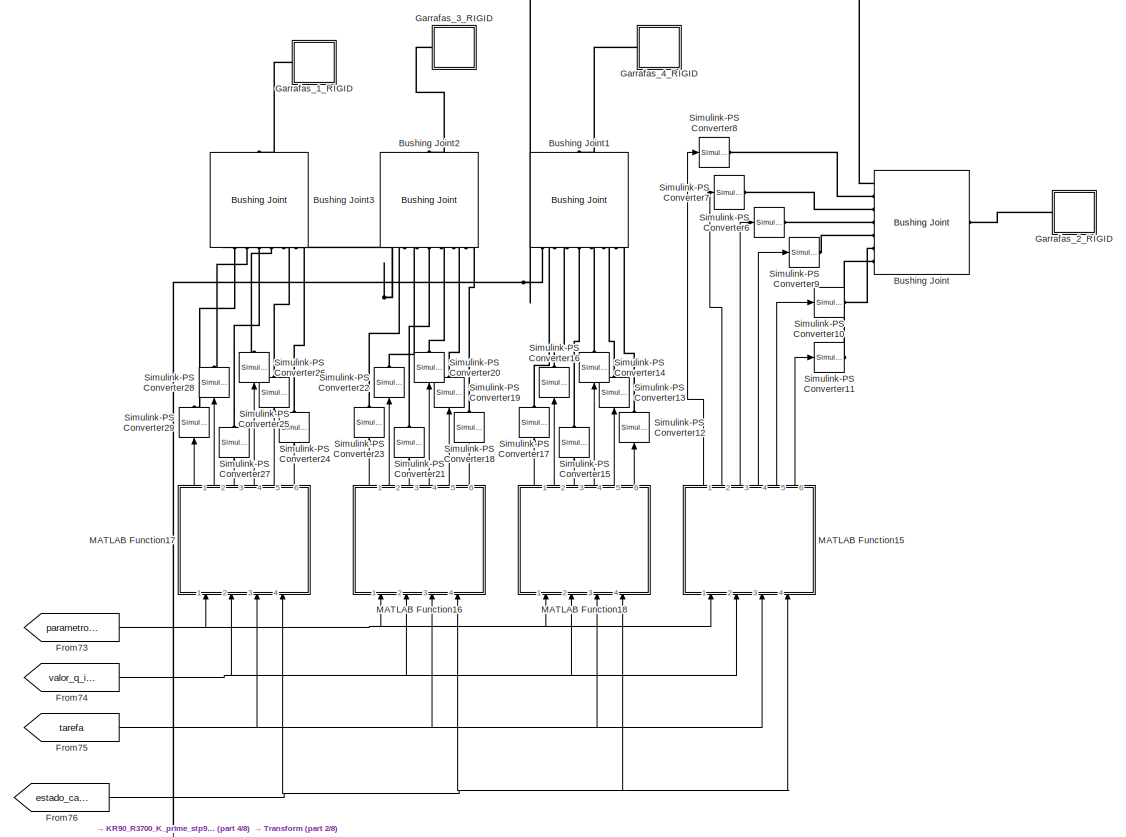
[diagram: root canvas - part 1/8, top center region]
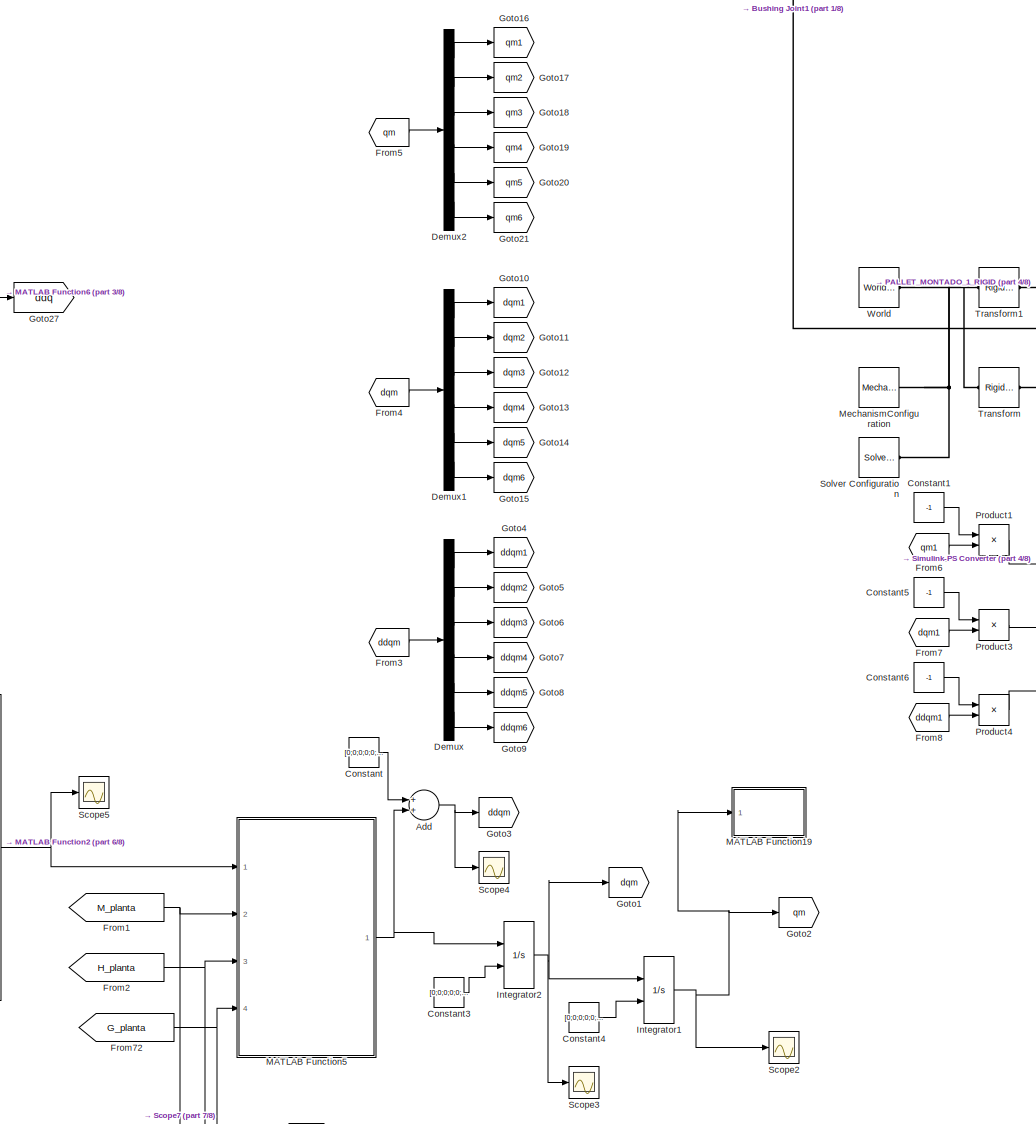
[diagram: root canvas - part 2/8, central region]
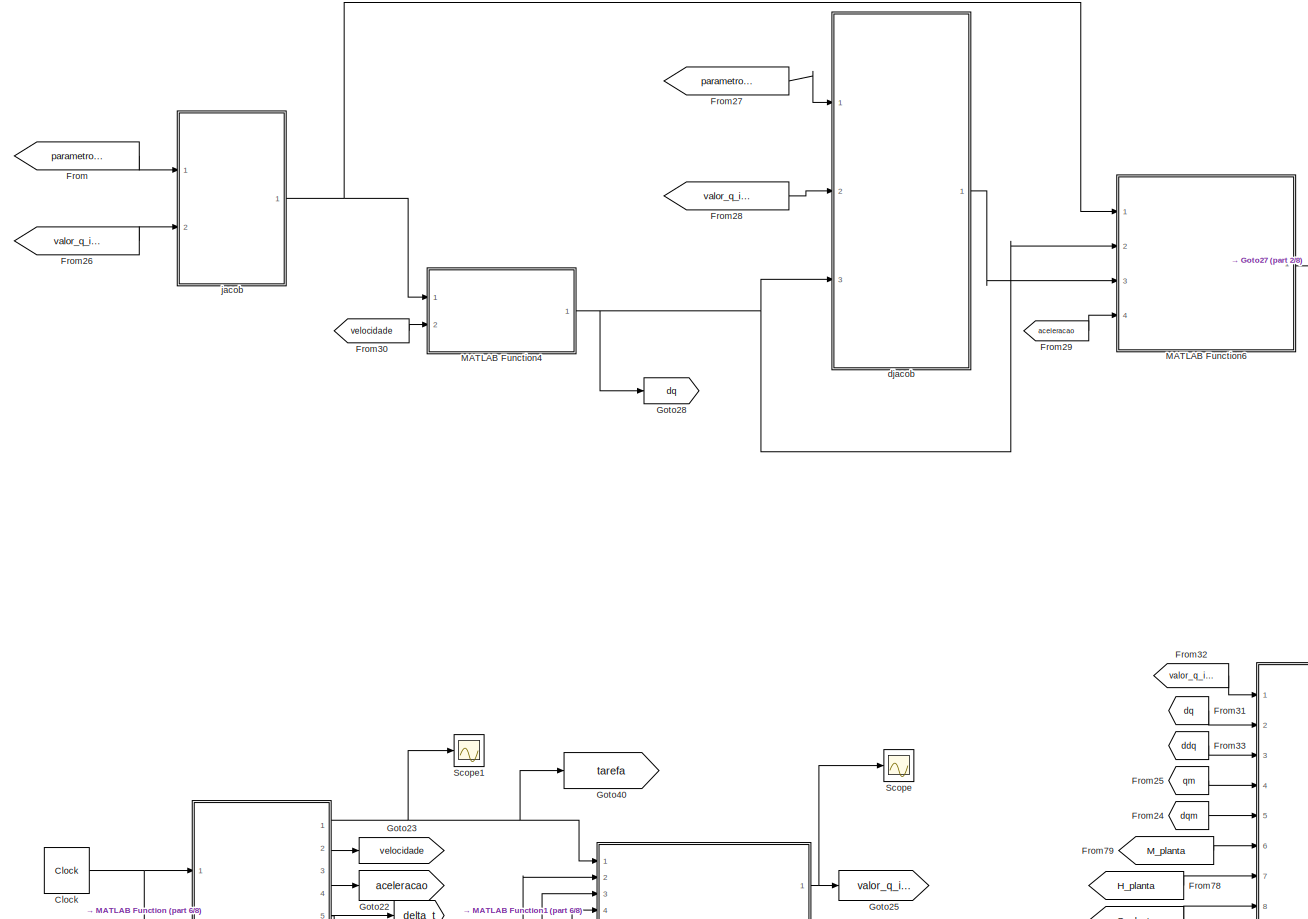
[diagram: root canvas - part 3/8, middle left region]
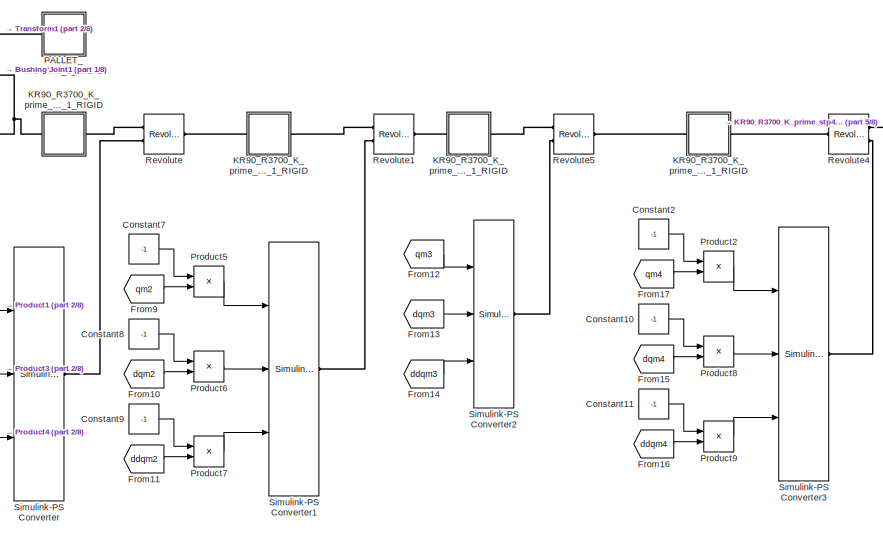
[diagram: root canvas - part 4/8, middle right region]
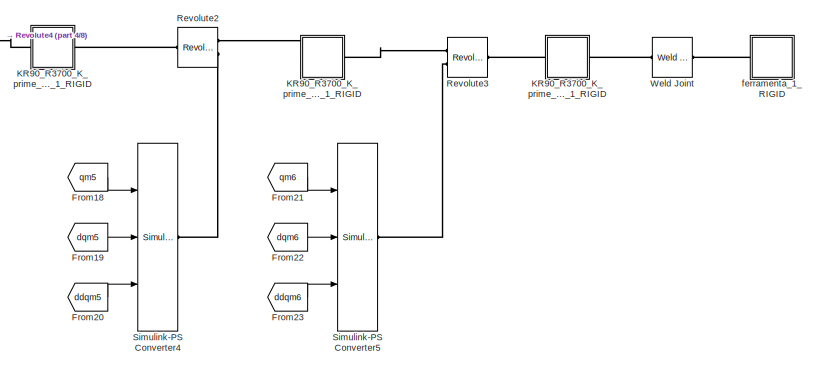
[diagram: root canvas - part 5/8, middle right region]
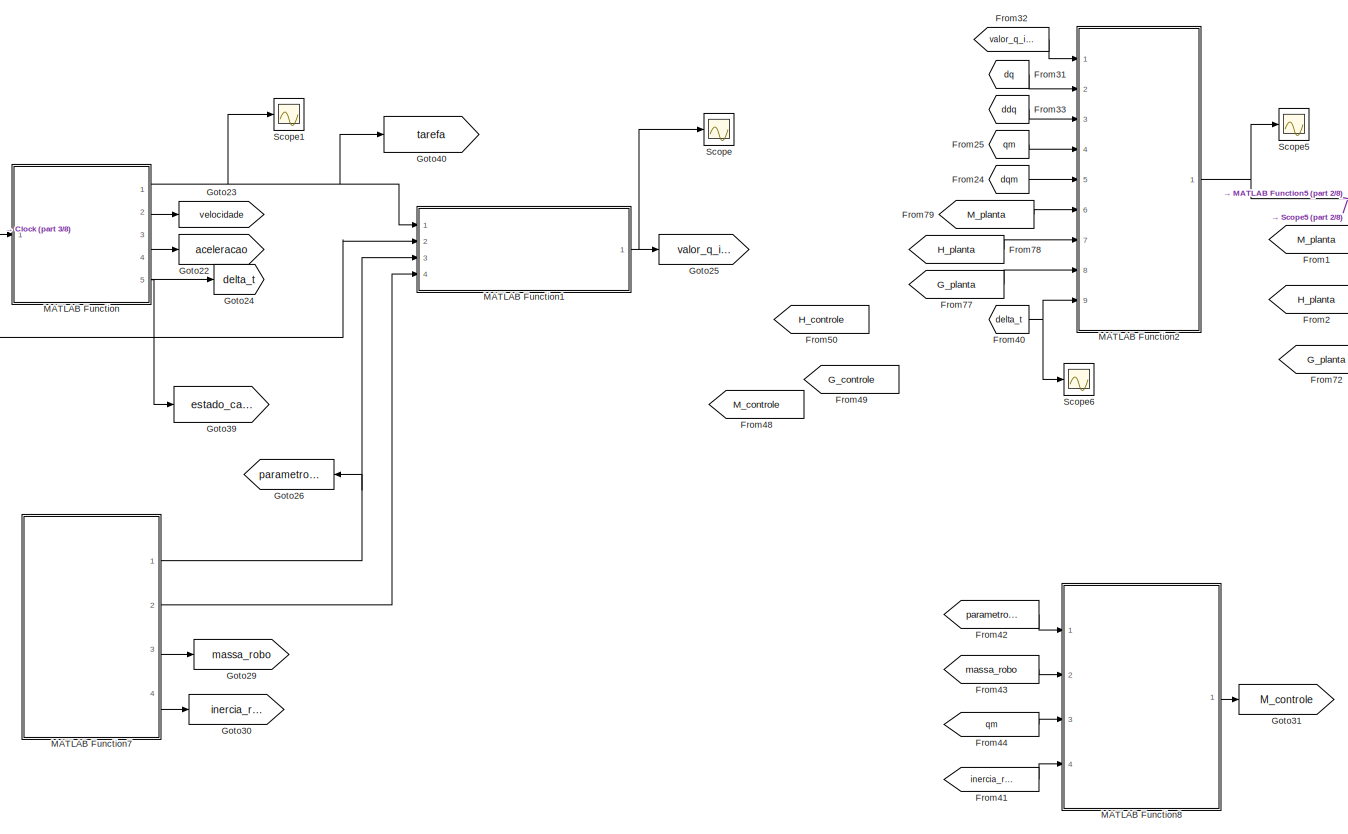
[diagram: root canvas - part 6/8, middle left region]
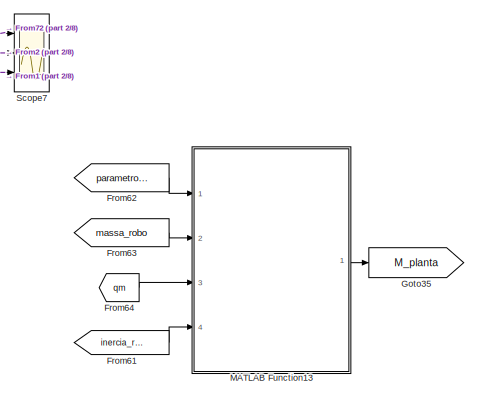
[diagram: root canvas - part 7/8, bottom center region]
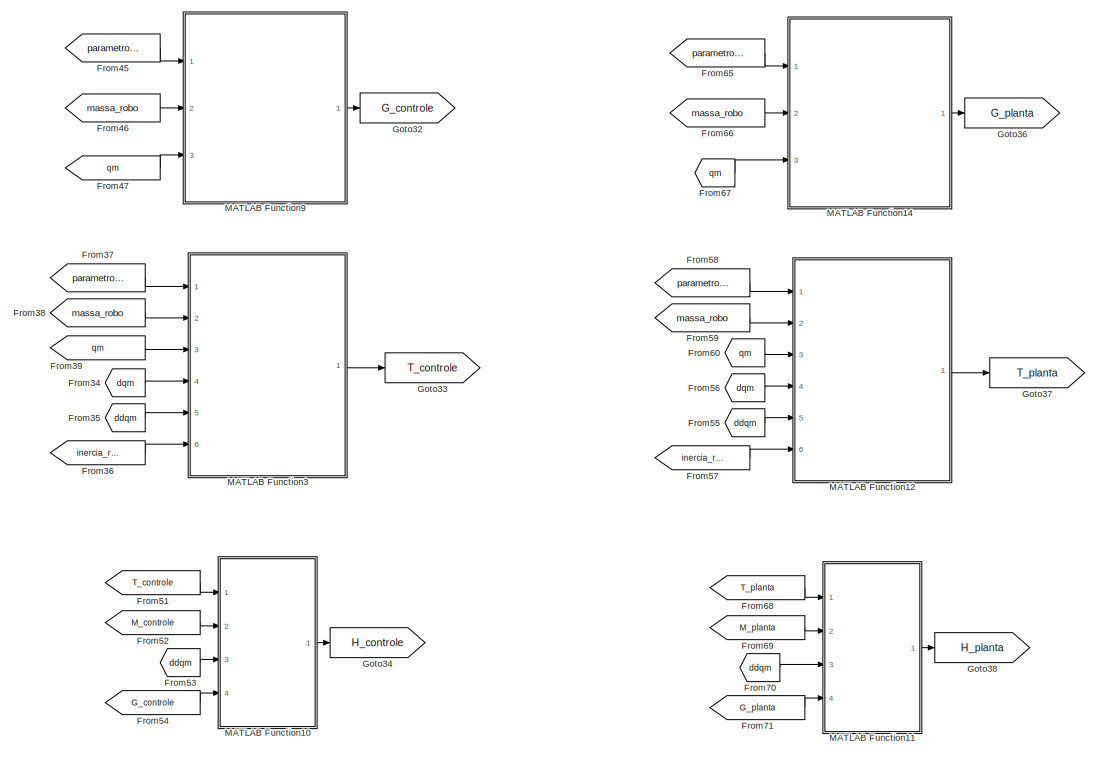
[diagram: root canvas - part 8/8, bottom center region]
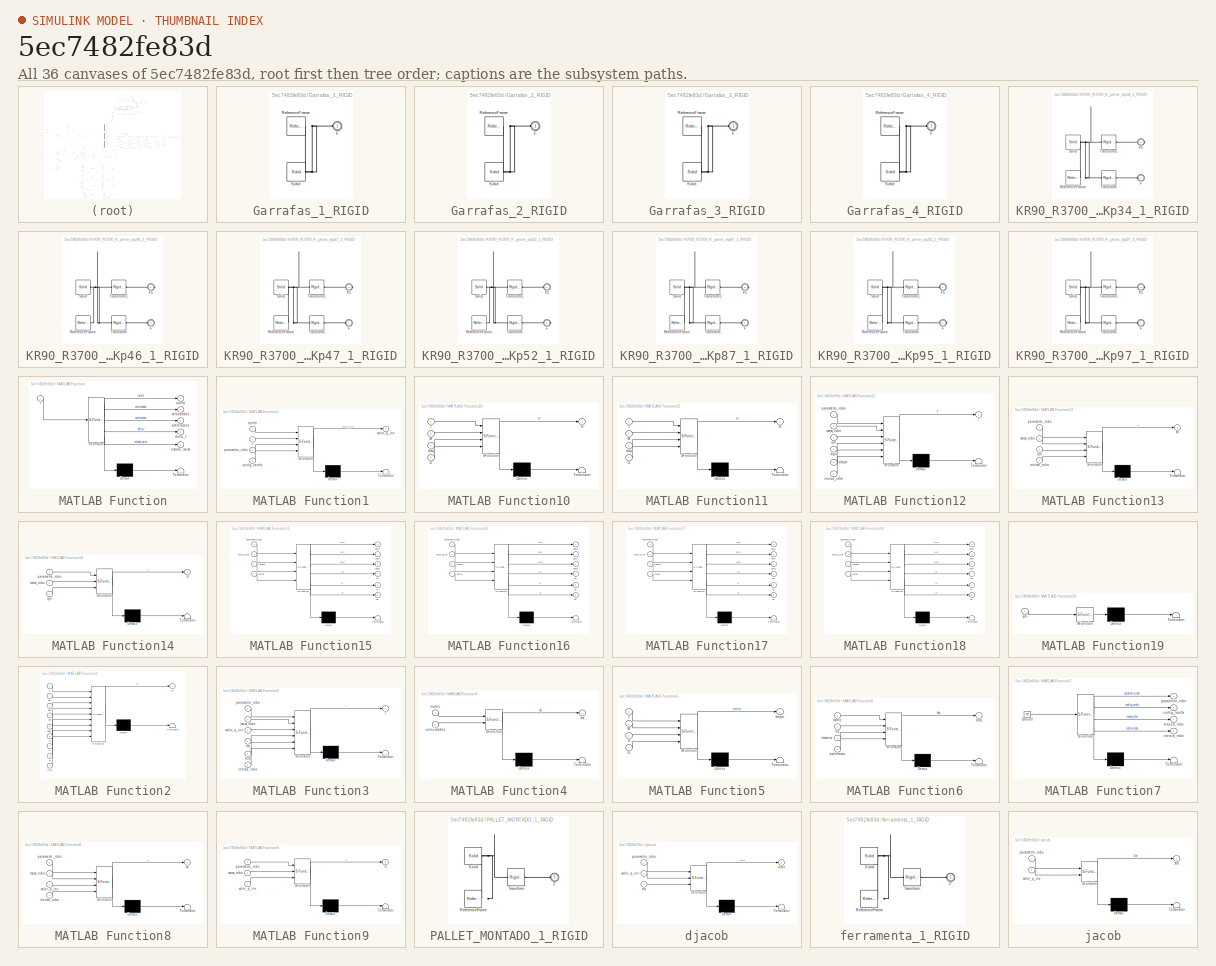
[diagram: thumbnail index - all 36 canvases of the model, root first then tree order]
MODEL slx_5ec7482fe83d
KIND model
CONFIG AbsTol = auto
CONFIG EnableMultiTasking = off
CONFIG FixedStep = 0.4
CONFIG MaxStep = 0.4
CONFIG MinStep = auto
CONFIG RelTol = 1e-3
CONFIG SampleTimeConstraint = Unconstrained
CONFIG Solver = VariableStepAuto
CONFIG SolverName = VariableStepAuto
CONFIG StartTime = 0.0
CONFIG StopTime = 59
WORKSPACE source: external: MATLAB File  (data not in archive)
BLOCK [Sum] Add
  InputSameDT = off
  OutDataTypeStr = Inherit: Inherit via internal rule
  Ports = [2, 1]
  SaturateOnIntegerOverflow = off
BLOCK [Reference] Bushing Joint  REF=sm_lib/Joints/Bushing Joint
  Commented = on
  Ports = [0, 0, 0, 0, 0, 7, 1]
  SourceBlock = sm_lib/Joints/Bushing Joint
  SourceProductBaseCode = MS
  SourceProductName = Simscape Multibody
  SourceType = Bushing Joint
BLOCK [Reference] Bushing Joint1  REF=sm_lib/Joints/Bushing Joint
  Commented = on
  Ports = [0, 0, 0, 0, 0, 7, 1]
  SourceBlock = sm_lib/Joints/Bushing Joint
  SourceProductBaseCode = MS
  SourceProductName = Simscape Multibody
  SourceType = Bushing Joint
BLOCK [Reference] Bushing Joint2  REF=sm_lib/Joints/Bushing Joint
  Commented = on
  Ports = [0, 0, 0, 0, 0, 7, 1]
  SourceBlock = sm_lib/Joints/Bushing Joint
  SourceProductBaseCode = MS
  SourceProductName = Simscape Multibody
  SourceType = Bushing Joint
BLOCK [Reference] Bushing Joint3  REF=sm_lib/Joints/Bushing Joint
  Commented = on
  Ports = [0, 0, 0, 0, 0, 7, 1]
  SourceBlock = sm_lib/Joints/Bushing Joint
  SourceProductBaseCode = MS
  SourceProductName = Simscape Multibody
  SourceType = Bushing Joint
BLOCK [Clock] Clock
BLOCK [Constant] Constant
  Value = [0;0;0;0;0;0]
BLOCK [Constant] Constant1
  Value = -1
BLOCK [Constant] Constant10
  Value = -1
BLOCK [Constant] Constant11
  Value = -1
BLOCK [Constant] Constant2
  Value = -1
BLOCK [Constant] Constant3
  Value = [0;0;0;0;0;0]
BLOCK [Constant] Constant4
  Value = [0;0;0;0;0;0]
BLOCK [Constant] Constant5
  Value = -1
BLOCK [Constant] Constant6
  Value = -1
BLOCK [Constant] Constant7
  Value = -1
BLOCK [Constant] Constant8
  Value = -1
BLOCK [Constant] Constant9
  Value = -1
BLOCK [Demux] Demux
  DisplayOption = bar
  Outputs = 6
  Ports = [1, 6]
BLOCK [Demux] Demux1
  DisplayOption = bar
  Outputs = 6
  Ports = [1, 6]
BLOCK [Demux] Demux2
  DisplayOption = bar
  Outputs = 6
  Ports = [1, 6]
BLOCK [From] From
  GotoTag = parametro_robo
BLOCK [From] From1
  GotoTag = M_planta
BLOCK [From] From10
  GotoTag = dqm2
BLOCK [From] From11
  GotoTag = ddqm2
BLOCK [From] From12
  GotoTag = qm3
BLOCK [From] From13
  GotoTag = dqm3
BLOCK [From] From14
  GotoTag = ddqm3
BLOCK [From] From15
  GotoTag = dqm4
BLOCK [From] From16
  GotoTag = ddqm4
BLOCK [From] From17
  GotoTag = qm4
BLOCK [From] From18
  GotoTag = qm5
BLOCK [From] From19
  GotoTag = dqm5
BLOCK [From] From2
  GotoTag = H_planta
BLOCK [From] From20
  GotoTag = ddqm5
BLOCK [From] From21
  GotoTag = qm6
BLOCK [From] From22
  GotoTag = dqm6
BLOCK [From] From23
  GotoTag = ddqm6
BLOCK [From] From24
  GotoTag = dqm
BLOCK [From] From25
  GotoTag = qm
BLOCK [From] From26
  GotoTag = valor_q_inv
BLOCK [From] From27
  GotoTag = parametro_robo
BLOCK [From] From28
  GotoTag = valor_q_inv
BLOCK [From] From29
  GotoTag = aceleracao
BLOCK [From] From3
  GotoTag = ddqm
BLOCK [From] From30
  GotoTag = velocidade
BLOCK [From] From31
  GotoTag = dq
BLOCK [From] From32
  GotoTag = valor_q_inv
BLOCK [From] From33
  GotoTag = ddq
BLOCK [From] From34
  Commented = on
  GotoTag = dqm
BLOCK [From] From35
  Commented = on
  GotoTag = ddqm
BLOCK [From] From36
  Commented = on
  GotoTag = inercia_robo
BLOCK [From] From37
  Commented = on
  GotoTag = parametro_robo
BLOCK [From] From38
  Commented = on
  GotoTag = massa_robo
BLOCK [From] From39
  Commented = on
  GotoTag = qm
BLOCK [From] From4
  GotoTag = dqm
BLOCK [From] From40
  GotoTag = delta_t
BLOCK [From] From41
  Commented = on
  GotoTag = inercia_robo
BLOCK [From] From42
  Commented = on
  GotoTag = parametro_robo
BLOCK [From] From43
  Commented = on
  GotoTag = massa_robo
BLOCK [From] From44
  Commented = on
  GotoTag = qm
BLOCK [From] From45
  Commented = on
  GotoTag = parametro_robo
BLOCK [From] From46
  Commented = on
  GotoTag = massa_robo
BLOCK [From] From47
  Commented = on
  GotoTag = qm
BLOCK [From] From48
  Commented = on
  GotoTag = M_controle
BLOCK [From] From49
  Commented = on
  GotoTag = G_controle
BLOCK [From] From5
  GotoTag = qm
BLOCK [From] From50
  Commented = on
  GotoTag = H_controle
BLOCK [From] From51
  Commented = on
  GotoTag = T_controle
BLOCK [From] From52
  Commented = on
  GotoTag = M_controle
BLOCK [From] From53
  Commented = on
  GotoTag = ddqm
BLOCK [From] From54
  Commented = on
  GotoTag = G_controle
BLOCK [From] From55
  GotoTag = ddqm
BLOCK [From] From56
  GotoTag = dqm
BLOCK [From] From57
  GotoTag = inercia_robo
BLOCK [From] From58
  GotoTag = parametro_robo
BLOCK [From] From59
  GotoTag = massa_robo
BLOCK [From] From6
  GotoTag = qm1
BLOCK [From] From60
  GotoTag = qm
BLOCK [From] From61
  GotoTag = inercia_robo
BLOCK [From] From62
  GotoTag = parametro_robo
BLOCK [From] From63
  GotoTag = massa_robo
BLOCK [From] From64
  GotoTag = qm
BLOCK [From] From65
  GotoTag = parametro_robo
BLOCK [From] From66
  GotoTag = massa_robo
BLOCK [From] From67
  GotoTag = qm
BLOCK [From] From68
  GotoTag = T_planta
BLOCK [From] From69
  GotoTag = M_planta
BLOCK [From] From7
  GotoTag = dqm1
BLOCK [From] From70
  GotoTag = ddqm
BLOCK [From] From71
  GotoTag = G_planta
BLOCK [From] From72
  GotoTag = G_planta
BLOCK [From] From73
  Commented = on
  GotoTag = parametro_robo
BLOCK [From] From74
  Commented = on
  GotoTag = valor_q_inv
BLOCK [From] From75
  Commented = on
  GotoTag = tarefa
BLOCK [From] From76
  Commented = on
  GotoTag = estado_caixa
BLOCK [From] From77
  GotoTag = G_planta
BLOCK [From] From78
  GotoTag = H_planta
BLOCK [From] From79
  GotoTag = M_planta
BLOCK [From] From8
  GotoTag = ddqm1
BLOCK [From] From9
  GotoTag = qm2
BLOCK [SubSystem] Garrafas_1_RIGID
  Commented = on
  Ports = [0, 0, 0, 0, 0, 1]
  RequestExecContextInheritance = off
BLOCK [PMIOPort] Garrafas_1_RIGID/F
  Side = Left
BLOCK [Reference] Garrafas_1_RIGID/ReferenceFrame  REF=sm_lib/Frames and
Transforms/Reference
Frame
  Ports = [0, 0, 0, 0, 0, 0, 1]
  SourceBlock = sm_lib/Frames and\nTransforms/Reference\nFrame
  SourceProductBaseCode = MS
  SourceProductName = Simscape Multibody
  SourceType = Reference\nFrame
BLOCK [Reference] Garrafas_1_RIGID/Solid  REF=sm_lib/Body Elements/Solid
  Ports = [0, 0, 0, 0, 0, 0, 1]
  SourceBlock = sm_lib/Body Elements/Solid
  SourceProductBaseCode = MS
  SourceProductName = Simscape Multibody
  SourceType = Solid
BLOCK [SubSystem] Garrafas_2_RIGID
  Commented = on
  Ports = [0, 0, 0, 0, 0, 1]
  RequestExecContextInheritance = off
BLOCK [PMIOPort] Garrafas_2_RIGID/F
  Side = Left
BLOCK [Reference] Garrafas_2_RIGID/ReferenceFrame  REF=sm_lib/Frames and
Transforms/Reference
Frame
  Ports = [0, 0, 0, 0, 0, 0, 1]
  SourceBlock = sm_lib/Frames and\nTransforms/Reference\nFrame
  SourceProductBaseCode = MS
  SourceProductName = Simscape Multibody
  SourceType = Reference\nFrame
BLOCK [Reference] Garrafas_2_RIGID/Solid  REF=sm_lib/Body Elements/Solid
  Ports = [0, 0, 0, 0, 0, 0, 1]
  SourceBlock = sm_lib/Body Elements/Solid
  SourceProductBaseCode = MS
  SourceProductName = Simscape Multibody
  SourceType = Solid
BLOCK [SubSystem] Garrafas_3_RIGID
  Commented = on
  Ports = [0, 0, 0, 0, 0, 1]
  RequestExecContextInheritance = off
BLOCK [PMIOPort] Garrafas_3_RIGID/F
  Side = Left
BLOCK [Reference] Garrafas_3_RIGID/ReferenceFrame  REF=sm_lib/Frames and
Transforms/Reference
Frame
  Ports = [0, 0, 0, 0, 0, 0, 1]
  SourceBlock = sm_lib/Frames and\nTransforms/Reference\nFrame
  SourceProductBaseCode = MS
  SourceProductName = Simscape Multibody
  SourceType = Reference\nFrame
BLOCK [Reference] Garrafas_3_RIGID/Solid  REF=sm_lib/Body Elements/Solid
  Ports = [0, 0, 0, 0, 0, 0, 1]
  SourceBlock = sm_lib/Body Elements/Solid
  SourceProductBaseCode = MS
  SourceProductName = Simscape Multibody
  SourceType = Solid
BLOCK [SubSystem] Garrafas_4_RIGID
  Commented = on
  Ports = [0, 0, 0, 0, 0, 1]
  RequestExecContextInheritance = off
BLOCK [PMIOPort] Garrafas_4_RIGID/F
  Side = Left
BLOCK [Reference] Garrafas_4_RIGID/ReferenceFrame  REF=sm_lib/Frames and
Transforms/Reference
Frame
  Ports = [0, 0, 0, 0, 0, 0, 1]
  SourceBlock = sm_lib/Frames and\nTransforms/Reference\nFrame
  SourceProductBaseCode = MS
  SourceProductName = Simscape Multibody
  SourceType = Reference\nFrame
BLOCK [Reference] Garrafas_4_RIGID/Solid  REF=sm_lib/Body Elements/Solid
  Ports = [0, 0, 0, 0, 0, 0, 1]
  SourceBlock = sm_lib/Body Elements/Solid
  SourceProductBaseCode = MS
  SourceProductName = Simscape Multibody
  SourceType = Solid
BLOCK [Goto] Goto1
  GotoTag = dqm
BLOCK [Goto] Goto10
  GotoTag = dqm1
BLOCK [Goto] Goto11
  GotoTag = dqm2
BLOCK [Goto] Goto12
  GotoTag = dqm3
BLOCK [Goto] Goto13
  GotoTag = dqm4
BLOCK [Goto] Goto14
  GotoTag = dqm5
BLOCK [Goto] Goto15
  GotoTag = dqm6
BLOCK [Goto] Goto16
  GotoTag = qm1
BLOCK [Goto] Goto17
  GotoTag = qm2
BLOCK [Goto] Goto18
  GotoTag = qm3
BLOCK [Goto] Goto19
  GotoTag = qm4
BLOCK [Goto] Goto2
  GotoTag = qm
BLOCK [Goto] Goto20
  GotoTag = qm5
BLOCK [Goto] Goto21
  GotoTag = qm6
BLOCK [Goto] Goto22
  GotoTag = aceleracao
BLOCK [Goto] Goto23
  GotoTag = velocidade
BLOCK [Goto] Goto24
  GotoTag = delta_t
BLOCK [Goto] Goto25
  GotoTag = valor_q_inv
BLOCK [Goto] Goto26
  GotoTag = parametro_robo
BLOCK [Goto] Goto27
  GotoTag = ddq
BLOCK [Goto] Goto28
  GotoTag = dq
BLOCK [Goto] Goto29
  GotoTag = massa_robo
BLOCK [Goto] Goto3
  GotoTag = ddqm
BLOCK [Goto] Goto30
  GotoTag = inercia_robo
BLOCK [Goto] Goto31
  Commented = on
  GotoTag = M_controle
BLOCK [Goto] Goto32
  Commented = on
  GotoTag = G_controle
BLOCK [Goto] Goto33
  Commented = on
  GotoTag = T_controle
BLOCK [Goto] Goto34
  Commented = on
  GotoTag = H_controle
BLOCK [Goto] Goto35
  GotoTag = M_planta
BLOCK [Goto] Goto36
  GotoTag = G_planta
BLOCK [Goto] Goto37
  GotoTag = T_planta
BLOCK [Goto] Goto38
  GotoTag = H_planta
BLOCK [Goto] Goto39
  Commented = on
  GotoTag = estado_caixa
BLOCK [Goto] Goto4
  GotoTag = ddqm1
BLOCK [Goto] Goto40
  Commented = on
  GotoTag = tarefa
BLOCK [Goto] Goto5
  GotoTag = ddqm2
BLOCK [Goto] Goto6
  GotoTag = ddqm3
BLOCK [Goto] Goto7
  GotoTag = ddqm4
BLOCK [Goto] Goto8
  GotoTag = ddqm5
BLOCK [Goto] Goto9
  GotoTag = ddqm6
BLOCK [Integrator] Integrator1
  InitialConditionSource = external
  Ports = [2, 1]
BLOCK [Integrator] Integrator2
  InitialConditionSource = external
  Ports = [2, 1]
BLOCK [SubSystem] KR90_R3700_K_prime_stp34_1_RIGID
  Ports = [0, 0, 0, 0, 0, 1, 1]
  RequestExecContextInheritance = off
BLOCK [PMIOPort] KR90_R3700_K_prime_stp34_1_RIGID/F
  Side = Left
BLOCK [PMIOPort] KR90_R3700_K_prime_stp34_1_RIGID/F1
  Port = 2
  Side = Right
BLOCK [Reference] KR90_R3700_K_prime_stp34_1_RIGID/ReferenceFrame  REF=sm_lib/Frames and
Transforms/Reference
Frame
  Ports = [0, 0, 0, 0, 0, 0, 1]
  SourceBlock = sm_lib/Frames and\nTransforms/Reference\nFrame
  SourceProductBaseCode = MS
  SourceProductName = Simscape Multibody
  SourceType = Reference\nFrame
BLOCK [Reference] KR90_R3700_K_prime_stp34_1_RIGID/Solid  REF=sm_lib/Body Elements/Solid
  Ports = [0, 0, 0, 0, 0, 0, 1]
  SourceBlock = sm_lib/Body Elements/Solid
  SourceProductBaseCode = MS
  SourceProductName = Simscape Multibody
  SourceType = Solid
BLOCK [Reference] KR90_R3700_K_prime_stp34_1_RIGID/Transform  REF=sm_lib/Frames and
Transforms/Rigid
Transform
  Ports = [0, 0, 0, 0, 0, 1, 1]
  SourceBlock = sm_lib/Frames and\nTransforms/Rigid\nTransform
  SourceProductBaseCode = MS
  SourceProductName = Simscape Multibody
  SourceType = Rigid\nTransform
BLOCK [Reference] KR90_R3700_K_prime_stp34_1_RIGID/Transform1  REF=sm_lib/Frames and
Transforms/Rigid
Transform
  Ports = [0, 0, 0, 0, 0, 1, 1]
  SourceBlock = sm_lib/Frames and\nTransforms/Rigid\nTransform
  SourceProductBaseCode = MS
  SourceProductName = Simscape Multibody
  SourceType = Rigid\nTransform
BLOCK [SubSystem] KR90_R3700_K_prime_stp46_1_RIGID
  Ports = [0, 0, 0, 0, 0, 1, 1]
  RequestExecContextInheritance = off
BLOCK [PMIOPort] KR90_R3700_K_prime_stp46_1_RIGID/F
  Port = 2
  Side = Left
BLOCK [PMIOPort] KR90_R3700_K_prime_stp46_1_RIGID/F1
  Side = Right
BLOCK [Reference] KR90_R3700_K_prime_stp46_1_RIGID/ReferenceFrame  REF=sm_lib/Frames and
Transforms/Reference
Frame
  Ports = [0, 0, 0, 0, 0, 0, 1]
  SourceBlock = sm_lib/Frames and\nTransforms/Reference\nFrame
  SourceProductBaseCode = MS
  SourceProductName = Simscape Multibody
  SourceType = Reference\nFrame
BLOCK [Reference] KR90_R3700_K_prime_stp46_1_RIGID/Solid  REF=sm_lib/Body Elements/Solid
  Ports = [0, 0, 0, 0, 0, 0, 1]
  SourceBlock = sm_lib/Body Elements/Solid
  SourceProductBaseCode = MS
  SourceProductName = Simscape Multibody
  SourceType = Solid
BLOCK [Reference] KR90_R3700_K_prime_stp46_1_RIGID/Transform  REF=sm_lib/Frames and
Transforms/Rigid
Transform
  Ports = [0, 0, 0, 0, 0, 1, 1]
  SourceBlock = sm_lib/Frames and\nTransforms/Rigid\nTransform
  SourceProductBaseCode = MS
  SourceProductName = Simscape Multibody
  SourceType = Rigid\nTransform
BLOCK [Reference] KR90_R3700_K_prime_stp46_1_RIGID/Transform1  REF=sm_lib/Frames and
Transforms/Rigid
Transform
  Ports = [0, 0, 0, 0, 0, 1, 1]
  SourceBlock = sm_lib/Frames and\nTransforms/Rigid\nTransform
  SourceProductBaseCode = MS
  SourceProductName = Simscape Multibody
  SourceType = Rigid\nTransform
BLOCK [SubSystem] KR90_R3700_K_prime_stp47_1_RIGID
  Ports = [0, 0, 0, 0, 0, 1, 1]
  RequestExecContextInheritance = off
BLOCK [PMIOPort] KR90_R3700_K_prime_stp47_1_RIGID/F
  Side = Left
BLOCK [PMIOPort] KR90_R3700_K_prime_stp47_1_RIGID/F1
  Port = 2
  Side = Right
BLOCK [Reference] KR90_R3700_K_prime_stp47_1_RIGID/ReferenceFrame  REF=sm_lib/Frames and
Transforms/Reference
Frame
  Ports = [0, 0, 0, 0, 0, 0, 1]
  SourceBlock = sm_lib/Frames and\nTransforms/Reference\nFrame
  SourceProductBaseCode = MS
  SourceProductName = Simscape Multibody
  SourceType = Reference\nFrame
BLOCK [Reference] KR90_R3700_K_prime_stp47_1_RIGID/Solid  REF=sm_lib/Body Elements/Solid
  Ports = [0, 0, 0, 0, 0, 0, 1]
  SourceBlock = sm_lib/Body Elements/Solid
  SourceProductBaseCode = MS
  SourceProductName = Simscape Multibody
  SourceType = Solid
BLOCK [Reference] KR90_R3700_K_prime_stp47_1_RIGID/Transform  REF=sm_lib/Frames and
Transforms/Rigid
Transform
  Ports = [0, 0, 0, 0, 0, 1, 1]
  SourceBlock = sm_lib/Frames and\nTransforms/Rigid\nTransform
  SourceProductBaseCode = MS
  SourceProductName = Simscape Multibody
  SourceType = Rigid\nTransform
BLOCK [Reference] KR90_R3700_K_prime_stp47_1_RIGID/Transform1  REF=sm_lib/Frames and
Transforms/Rigid
Transform
  Ports = [0, 0, 0, 0, 0, 1, 1]
  SourceBlock = sm_lib/Frames and\nTransforms/Rigid\nTransform
  SourceProductBaseCode = MS
  SourceProductName = Simscape Multibody
  SourceType = Rigid\nTransform
BLOCK [SubSystem] KR90_R3700_K_prime_stp52_1_RIGID
  Ports = [0, 0, 0, 0, 0, 1, 1]
  RequestExecContextInheritance = off
BLOCK [PMIOPort] KR90_R3700_K_prime_stp52_1_RIGID/F
  Port = 2
  Side = Right
BLOCK [PMIOPort] KR90_R3700_K_prime_stp52_1_RIGID/F1
  Side = Left
BLOCK [Reference] KR90_R3700_K_prime_stp52_1_RIGID/ReferenceFrame  REF=sm_lib/Frames and
Transforms/Reference
Frame
  Ports = [0, 0, 0, 0, 0, 0, 1]
  SourceBlock = sm_lib/Frames and\nTransforms/Reference\nFrame
  SourceProductBaseCode = MS
  SourceProductName = Simscape Multibody
  SourceType = Reference\nFrame
BLOCK [Reference] KR90_R3700_K_prime_stp52_1_RIGID/Solid  REF=sm_lib/Body Elements/Solid
  Ports = [0, 0, 0, 0, 0, 0, 1]
  SourceBlock = sm_lib/Body Elements/Solid
  SourceProductBaseCode = MS
  SourceProductName = Simscape Multibody
  SourceType = Solid
BLOCK [Reference] KR90_R3700_K_prime_stp52_1_RIGID/Transform  REF=sm_lib/Frames and
Transforms/Rigid
Transform
  Ports = [0, 0, 0, 0, 0, 1, 1]
  SourceBlock = sm_lib/Frames and\nTransforms/Rigid\nTransform
  SourceProductBaseCode = MS
  SourceProductName = Simscape Multibody
  SourceType = Rigid\nTransform
BLOCK [Reference] KR90_R3700_K_prime_stp52_1_RIGID/Transform1  REF=sm_lib/Frames and
Transforms/Rigid
Transform
  Ports = [0, 0, 0, 0, 0, 1, 1]
  SourceBlock = sm_lib/Frames and\nTransforms/Rigid\nTransform
  SourceProductBaseCode = MS
  SourceProductName = Simscape Multibody
  SourceType = Rigid\nTransform
BLOCK [SubSystem] KR90_R3700_K_prime_stp87_1_RIGID
  Ports = [0, 0, 0, 0, 0, 1, 1]
  RequestExecContextInheritance = off
BLOCK [PMIOPort] KR90_R3700_K_prime_stp87_1_RIGID/F
  Side = Left
BLOCK [PMIOPort] KR90_R3700_K_prime_stp87_1_RIGID/F1
  Port = 2
  Side = Right
BLOCK [Reference] KR90_R3700_K_prime_stp87_1_RIGID/ReferenceFrame  REF=sm_lib/Frames and
Transforms/Reference
Frame
  Ports = [0, 0, 0, 0, 0, 0, 1]
  SourceBlock = sm_lib/Frames and\nTransforms/Reference\nFrame
  SourceProductBaseCode = MS
  SourceProductName = Simscape Multibody
  SourceType = Reference\nFrame
BLOCK [Reference] KR90_R3700_K_prime_stp87_1_RIGID/Solid  REF=sm_lib/Body Elements/Solid
  Ports = [0, 0, 0, 0, 0, 0, 1]
  SourceBlock = sm_lib/Body Elements/Solid
  SourceProductBaseCode = MS
  SourceProductName = Simscape Multibody
  SourceType = Solid
BLOCK [Reference] KR90_R3700_K_prime_stp87_1_RIGID/Transform  REF=sm_lib/Frames and
Transforms/Rigid
Transform
  Ports = [0, 0, 0, 0, 0, 1, 1]
  SourceBlock = sm_lib/Frames and\nTransforms/Rigid\nTransform
  SourceProductBaseCode = MS
  SourceProductName = Simscape Multibody
  SourceType = Rigid\nTransform
BLOCK [Reference] KR90_R3700_K_prime_stp87_1_RIGID/Transform1  REF=sm_lib/Frames and
Transforms/Rigid
Transform
  Ports = [0, 0, 0, 0, 0, 1, 1]
  SourceBlock = sm_lib/Frames and\nTransforms/Rigid\nTransform
  SourceProductBaseCode = MS
  SourceProductName = Simscape Multibody
  SourceType = Rigid\nTransform
BLOCK [SubSystem] KR90_R3700_K_prime_stp95_1_RIGID
  Ports = [0, 0, 0, 0, 0, 1, 1]
  RequestExecContextInheritance = off
BLOCK [PMIOPort] KR90_R3700_K_prime_stp95_1_RIGID/F
  Port = 2
  Side = Right
BLOCK [PMIOPort] KR90_R3700_K_prime_stp95_1_RIGID/F1
  Side = Left
BLOCK [Reference] KR90_R3700_K_prime_stp95_1_RIGID/ReferenceFrame  REF=sm_lib/Frames and
Transforms/Reference
Frame
  Ports = [0, 0, 0, 0, 0, 0, 1]
  SourceBlock = sm_lib/Frames and\nTransforms/Reference\nFrame
  SourceProductBaseCode = MS
  SourceProductName = Simscape Multibody
  SourceType = Reference\nFrame
BLOCK [Reference] KR90_R3700_K_prime_stp95_1_RIGID/Solid  REF=sm_lib/Body Elements/Solid
  Ports = [0, 0, 0, 0, 0, 0, 1]
  SourceBlock = sm_lib/Body Elements/Solid
  SourceProductBaseCode = MS
  SourceProductName = Simscape Multibody
  SourceType = Solid
BLOCK [Reference] KR90_R3700_K_prime_stp95_1_RIGID/Transform  REF=sm_lib/Frames and
Transforms/Rigid
Transform
  Ports = [0, 0, 0, 0, 0, 1, 1]
  SourceBlock = sm_lib/Frames and\nTransforms/Rigid\nTransform
  SourceProductBaseCode = MS
  SourceProductName = Simscape Multibody
  SourceType = Rigid\nTransform
BLOCK [Reference] KR90_R3700_K_prime_stp95_1_RIGID/Transform1  REF=sm_lib/Frames and
Transforms/Rigid
Transform
  Ports = [0, 0, 0, 0, 0, 1, 1]
  SourceBlock = sm_lib/Frames and\nTransforms/Rigid\nTransform
  SourceProductBaseCode = MS
  SourceProductName = Simscape Multibody
  SourceType = Rigid\nTransform
BLOCK [SubSystem] KR90_R3700_K_prime_stp97_1_RIGID
  Ports = [0, 0, 0, 0, 0, 1, 1]
  RequestExecContextInheritance = off
BLOCK [PMIOPort] KR90_R3700_K_prime_stp97_1_RIGID/F
  Side = Left
BLOCK [PMIOPort] KR90_R3700_K_prime_stp97_1_RIGID/F1
  Port = 2
  Side = Right
BLOCK [Reference] KR90_R3700_K_prime_stp97_1_RIGID/ReferenceFrame  REF=sm_lib/Frames and
Transforms/Reference
Frame
  Ports = [0, 0, 0, 0, 0, 0, 1]
  SourceBlock = sm_lib/Frames and\nTransforms/Reference\nFrame
  SourceProductBaseCode = MS
  SourceProductName = Simscape Multibody
  SourceType = Reference\nFrame
BLOCK [Reference] KR90_R3700_K_prime_stp97_1_RIGID/Solid  REF=sm_lib/Body Elements/Solid
  Ports = [0, 0, 0, 0, 0, 0, 1]
  SourceBlock = sm_lib/Body Elements/Solid
  SourceProductBaseCode = MS
  SourceProductName = Simscape Multibody
  SourceType = Solid
BLOCK [Reference] KR90_R3700_K_prime_stp97_1_RIGID/Transform  REF=sm_lib/Frames and
Transforms/Rigid
Transform
  Ports = [0, 0, 0, 0, 0, 1, 1]
  SourceBlock = sm_lib/Frames and\nTransforms/Rigid\nTransform
  SourceProductBaseCode = MS
  SourceProductName = Simscape Multibody
  SourceType = Rigid\nTransform
BLOCK [Reference] KR90_R3700_K_prime_stp97_1_RIGID/Transform1  REF=sm_lib/Frames and
Transforms/Rigid
Transform
  Ports = [0, 0, 0, 0, 0, 1, 1]
  SourceBlock = sm_lib/Frames and\nTransforms/Rigid\nTransform
  SourceProductBaseCode = MS
  SourceProductName = Simscape Multibody
  SourceType = Rigid\nTransform
BLOCK [SubSystem] MATLAB Function
  ErrorFcn = Stateflow.Translate.translate
  PermitHierarchicalResolution = ExplicitOnly
  Ports = [1, 5]
  RequestExecContextInheritance = off
  SFBlockType = MATLAB Function
  TreatAsAtomicUnit = on
BLOCK [Demux] MATLAB Function/ Demux 
  Outputs = 1
  Ports = [1, 1]
BLOCK [S-Function] MATLAB Function/ SFunction 
  EnableBusSupport = on
  FunctionName = sf_sfun
  PortCounts = [1 6]
  Ports = [1, 6]
  SFcnIsStateOwnerBlock = off
  SFunctionDeploymentMode = off
  Tag = Stateflow S-Function novamontagemrobo 2
BLOCK [Terminator] MATLAB Function/ Terminator 
BLOCK [Outport] MATLAB Function/aceleracoes
  IconDisplay = Port number
  Port = 3
BLOCK [Outport] MATLAB Function/delta_t
  IconDisplay = Port number
  Port = 4
BLOCK [Outport] MATLAB Function/estado_caixa
  IconDisplay = Port number
  Port = 5
BLOCK [Inport] MATLAB Function/t
  IconDisplay = Port number
BLOCK [Outport] MATLAB Function/tarefa
  IconDisplay = Port number
BLOCK [Outport] MATLAB Function/velocidades
  IconDisplay = Port number
  Port = 2
BLOCK [SubSystem] MATLAB Function1
  ErrorFcn = Stateflow.Translate.translate
  PermitHierarchicalResolution = ExplicitOnly
  Ports = [4, 1]
  RequestExecContextInheritance = off
  SFBlockType = MATLAB Function
  TreatAsAtomicUnit = on
BLOCK [Demux] MATLAB Function1/ Demux 
  Outputs = 1
  Ports = [1, 1]
BLOCK [S-Function] MATLAB Function1/ SFunction 
  EnableBusSupport = on
  FunctionName = sf_sfun
  PortCounts = [4 2]
  Ports = [4, 2]
  SFcnIsStateOwnerBlock = off
  SFunctionDeploymentMode = off
  Tag = Stateflow S-Function novamontagemrobo 1
BLOCK [Terminator] MATLAB Function1/ Terminator 
BLOCK [Inport] MATLAB Function1/config_tarefa
  IconDisplay = Port number
  Port = 4
BLOCK [Inport] MATLAB Function1/parametro_robo
  IconDisplay = Port number
  Port = 3
BLOCK [Inport] MATLAB Function1/t
  IconDisplay = Port number
  Port = 2
BLOCK [Inport] MATLAB Function1/tarefa
  IconDisplay = Port number
BLOCK [Outport] MATLAB Function1/valor_q_inv
  IconDisplay = Port number
BLOCK [SubSystem] MATLAB Function10
  Commented = on
  ErrorFcn = Stateflow.Translate.translate
  PermitHierarchicalResolution = ExplicitOnly
  Ports = [4, 1]
  RequestExecContextInheritance = off
  SFBlockType = MATLAB Function
  TreatAsAtomicUnit = on
BLOCK [Demux] MATLAB Function10/ Demux 
  Outputs = 1
  Ports = [1, 1]
BLOCK [S-Function] MATLAB Function10/ SFunction 
  EnableBusSupport = on
  FunctionName = sf_sfun
  PortCounts = [4 2]
  Ports = [4, 2]
  SFcnIsStateOwnerBlock = off
  SFunctionDeploymentMode = off
  Tag = Stateflow S-Function novamontagemrobo 15
BLOCK [Terminator] MATLAB Function10/ Terminator 
BLOCK [Inport] MATLAB Function10/G
  IconDisplay = Port number
  Port = 4
BLOCK [Outport] MATLAB Function10/H
  IconDisplay = Port number
BLOCK [Inport] MATLAB Function10/M
  IconDisplay = Port number
  Port = 2
BLOCK [Inport] MATLAB Function10/T
  IconDisplay = Port number
BLOCK [Inport] MATLAB Function10/ddq
  IconDisplay = Port number
  Port = 3
BLOCK [SubSystem] MATLAB Function11
  ErrorFcn = Stateflow.Translate.translate
  PermitHierarchicalResolution = ExplicitOnly
  Ports = [4, 1]
  RequestExecContextInheritance = off
  SFBlockType = MATLAB Function
  TreatAsAtomicUnit = on
BLOCK [Demux] MATLAB Function11/ Demux 
  Outputs = 1
  Ports = [1, 1]
BLOCK [S-Function] MATLAB Function11/ SFunction 
  EnableBusSupport = on
  FunctionName = sf_sfun
  PortCounts = [4 2]
  Ports = [4, 2]
  SFcnIsStateOwnerBlock = off
  SFunctionDeploymentMode = off
  Tag = Stateflow S-Function novamontagemrobo 16
BLOCK [Terminator] MATLAB Function11/ Terminator 
BLOCK [Inport] MATLAB Function11/G
  IconDisplay = Port number
  Port = 4
BLOCK [Outport] MATLAB Function11/H
  IconDisplay = Port number
BLOCK [Inport] MATLAB Function11/M
  IconDisplay = Port number
  Port = 2
BLOCK [Inport] MATLAB Function11/T
  IconDisplay = Port number
BLOCK [Inport] MATLAB Function11/ddq
  IconDisplay = Port number
  Port = 3
BLOCK [SubSystem] MATLAB Function12
  ErrorFcn = Stateflow.Translate.translate
  PermitHierarchicalResolution = ExplicitOnly
  Ports = [6, 1]
  RequestExecContextInheritance = off
  SFBlockType = MATLAB Function
  TreatAsAtomicUnit = on
BLOCK [Demux] MATLAB Function12/ Demux 
  Outputs = 1
  Ports = [1, 1]
BLOCK [S-Function] MATLAB Function12/ SFunction 
  EnableBusSupport = on
  FunctionName = sf_sfun
  PortCounts = [6 2]
  Ports = [6, 2]
  SFcnIsStateOwnerBlock = off
  SFunctionDeploymentMode = off
  Tag = Stateflow S-Function novamontagemrobo 17
BLOCK [Terminator] MATLAB Function12/ Terminator 
BLOCK [Outport] MATLAB Function12/T
  IconDisplay = Port number
BLOCK [Inport] MATLAB Function12/ddqm
  IconDisplay = Port number
  Port = 5
BLOCK [Inport] MATLAB Function12/dqm
  IconDisplay = Port number
  Port = 4
BLOCK [Inport] MATLAB Function12/inercia_robo
  IconDisplay = Port number
  Port = 6
BLOCK [Inport] MATLAB Function12/mass_robo
  IconDisplay = Port number
  Port = 2
BLOCK [Inport] MATLAB Function12/parametro_robo
  IconDisplay = Port number
BLOCK [Inport] MATLAB Function12/qm
  IconDisplay = Port number
  Port = 3
BLOCK [SubSystem] MATLAB Function13
  ErrorFcn = Stateflow.Translate.translate
  PermitHierarchicalResolution = ExplicitOnly
  Ports = [4, 1]
  RequestExecContextInheritance = off
  SFBlockType = MATLAB Function
  TreatAsAtomicUnit = on
BLOCK [Demux] MATLAB Function13/ Demux 
  Outputs = 1
  Ports = [1, 1]
BLOCK [S-Function] MATLAB Function13/ SFunction 
  EnableBusSupport = on
  FunctionName = sf_sfun
  PortCounts = [4 2]
  Ports = [4, 2]
  SFcnIsStateOwnerBlock = off
  SFunctionDeploymentMode = off
  Tag = Stateflow S-Function novamontagemrobo 18
BLOCK [Terminator] MATLAB Function13/ Terminator 
BLOCK [Outport] MATLAB Function13/M
  IconDisplay = Port number
BLOCK [Inport] MATLAB Function13/inercia_robo
  IconDisplay = Port number
  Port = 4
BLOCK [Inport] MATLAB Function13/mass_robo
  IconDisplay = Port number
  Port = 2
BLOCK [Inport] MATLAB Function13/parametro_robo
  IconDisplay = Port number
BLOCK [Inport] MATLAB Function13/qm
  IconDisplay = Port number
  Port = 3
BLOCK [SubSystem] MATLAB Function14
  ErrorFcn = Stateflow.Translate.translate
  PermitHierarchicalResolution = ExplicitOnly
  Ports = [3, 1]
  RequestExecContextInheritance = off
  SFBlockType = MATLAB Function
  TreatAsAtomicUnit = on
BLOCK [Demux] MATLAB Function14/ Demux 
  Outputs = 1
  Ports = [1, 1]
BLOCK [S-Function] MATLAB Function14/ SFunction 
  EnableBusSupport = on
  FunctionName = sf_sfun
  PortCounts = [3 2]
  Ports = [3, 2]
  SFcnIsStateOwnerBlock = off
  SFunctionDeploymentMode = off
  Tag = Stateflow S-Function novamontagemrobo 19
BLOCK [Terminator] MATLAB Function14/ Terminator 
BLOCK [Outport] MATLAB Function14/G
  IconDisplay = Port number
BLOCK [Inport] MATLAB Function14/mass_robo
  IconDisplay = Port number
  Port = 2
BLOCK [Inport] MATLAB Function14/parametro_robo
  IconDisplay = Port number
BLOCK [Inport] MATLAB Function14/qm
  IconDisplay = Port number
  Port = 3
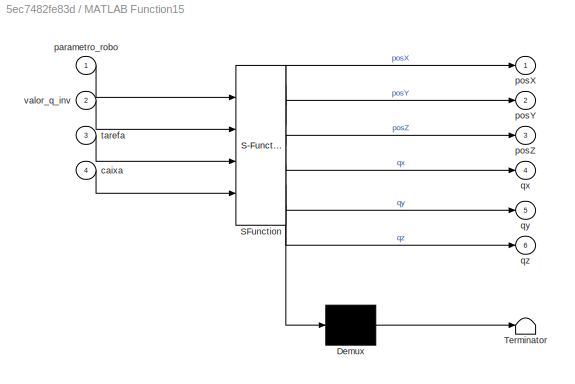
BLOCK [SubSystem] MATLAB Function15
  Commented = on
  ErrorFcn = Stateflow.Translate.translate
  PermitHierarchicalResolution = ExplicitOnly
  Ports = [4, 6]
  RequestExecContextInheritance = off
  SFBlockType = MATLAB Function
  TreatAsAtomicUnit = on
BLOCK [Demux] MATLAB Function15/ Demux 
  Outputs = 1
  Ports = [1, 1]
BLOCK [S-Function] MATLAB Function15/ SFunction 
  EnableBusSupport = on
  FunctionName = sf_sfun
  PortCounts = [4 7]
  Ports = [4, 7]
  SFcnIsStateOwnerBlock = off
  SFunctionDeploymentMode = off
  Tag = Stateflow S-Function novamontagemrobo 20
BLOCK [Terminator] MATLAB Function15/ Terminator 
BLOCK [Inport] MATLAB Function15/caixa
  IconDisplay = Port number
  Port = 4
BLOCK [Inport] MATLAB Function15/parametro_robo
  IconDisplay = Port number
BLOCK [Outport] MATLAB Function15/posX
  IconDisplay = Port number
BLOCK [Outport] MATLAB Function15/posY
  IconDisplay = Port number
  Port = 2
BLOCK [Outport] MATLAB Function15/posZ
  IconDisplay = Port number
  Port = 3
BLOCK [Outport] MATLAB Function15/qx
  IconDisplay = Port number
  Port = 4
BLOCK [Outport] MATLAB Function15/qy
  IconDisplay = Port number
  Port = 5
BLOCK [Outport] MATLAB Function15/qz
  IconDisplay = Port number
  Port = 6
BLOCK [Inport] MATLAB Function15/tarefa
  IconDisplay = Port number
  Port = 3
BLOCK [Inport] MATLAB Function15/valor_q_inv
  IconDisplay = Port number
  Port = 2
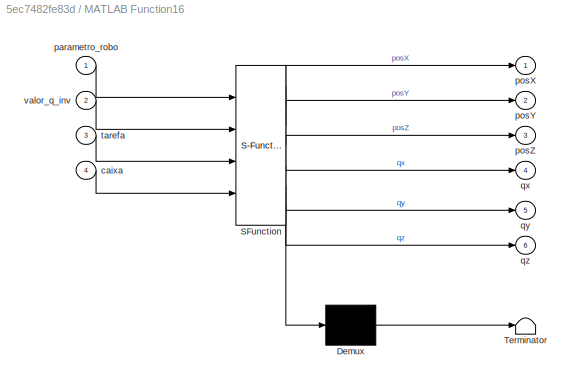
BLOCK [SubSystem] MATLAB Function16
  Commented = on
  ErrorFcn = Stateflow.Translate.translate
  PermitHierarchicalResolution = ExplicitOnly
  Ports = [4, 6]
  RequestExecContextInheritance = off
  SFBlockType = MATLAB Function
  TreatAsAtomicUnit = on
BLOCK [Demux] MATLAB Function16/ Demux 
  Outputs = 1
  Ports = [1, 1]
BLOCK [S-Function] MATLAB Function16/ SFunction 
  EnableBusSupport = on
  FunctionName = sf_sfun
  PortCounts = [4 7]
  Ports = [4, 7]
  SFcnIsStateOwnerBlock = off
  SFunctionDeploymentMode = off
  Tag = Stateflow S-Function novamontagemrobo 21
BLOCK [Terminator] MATLAB Function16/ Terminator 
BLOCK [Inport] MATLAB Function16/caixa
  IconDisplay = Port number
  Port = 4
BLOCK [Inport] MATLAB Function16/parametro_robo
  IconDisplay = Port number
BLOCK [Outport] MATLAB Function16/posX
  IconDisplay = Port number
BLOCK [Outport] MATLAB Function16/posY
  IconDisplay = Port number
  Port = 2
BLOCK [Outport] MATLAB Function16/posZ
  IconDisplay = Port number
  Port = 3
BLOCK [Outport] MATLAB Function16/qx
  IconDisplay = Port number
  Port = 4
BLOCK [Outport] MATLAB Function16/qy
  IconDisplay = Port number
  Port = 5
BLOCK [Outport] MATLAB Function16/qz
  IconDisplay = Port number
  Port = 6
BLOCK [Inport] MATLAB Function16/tarefa
  IconDisplay = Port number
  Port = 3
BLOCK [Inport] MATLAB Function16/valor_q_inv
  IconDisplay = Port number
  Port = 2
BLOCK [SubSystem] MATLAB Function17
  Commented = on
  ErrorFcn = Stateflow.Translate.translate
  PermitHierarchicalResolution = ExplicitOnly
  Ports = [4, 6]
  RequestExecContextInheritance = off
  SFBlockType = MATLAB Function
  TreatAsAtomicUnit = on
BLOCK [Demux] MATLAB Function17/ Demux 
  Outputs = 1
  Ports = [1, 1]
BLOCK [S-Function] MATLAB Function17/ SFunction 
  EnableBusSupport = on
  FunctionName = sf_sfun
  PortCounts = [4 7]
  Ports = [4, 7]
  SFcnIsStateOwnerBlock = off
  SFunctionDeploymentMode = off
  Tag = Stateflow S-Function novamontagemrobo 22
BLOCK [Terminator] MATLAB Function17/ Terminator 
BLOCK [Inport] MATLAB Function17/caixa
  IconDisplay = Port number
  Port = 4
BLOCK [Inport] MATLAB Function17/parametro_robo
  IconDisplay = Port number
BLOCK [Outport] MATLAB Function17/posX
  IconDisplay = Port number
BLOCK [Outport] MATLAB Function17/posY
  IconDisplay = Port number
  Port = 2
BLOCK [Outport] MATLAB Function17/posZ
  IconDisplay = Port number
  Port = 3
BLOCK [Outport] MATLAB Function17/qx
  IconDisplay = Port number
  Port = 4
BLOCK [Outport] MATLAB Function17/qy
  IconDisplay = Port number
  Port = 5
BLOCK [Outport] MATLAB Function17/qz
  IconDisplay = Port number
  Port = 6
BLOCK [Inport] MATLAB Function17/tarefa
  IconDisplay = Port number
  Port = 3
BLOCK [Inport] MATLAB Function17/valor_q_inv
  IconDisplay = Port number
  Port = 2
BLOCK [SubSystem] MATLAB Function18
  Commented = on
  ErrorFcn = Stateflow.Translate.translate
  PermitHierarchicalResolution = ExplicitOnly
  Ports = [4, 6]
  RequestExecContextInheritance = off
  SFBlockType = MATLAB Function
  TreatAsAtomicUnit = on
BLOCK [Demux] MATLAB Function18/ Demux 
  Outputs = 1
  Ports = [1, 1]
BLOCK [S-Function] MATLAB Function18/ SFunction 
  EnableBusSupport = on
  FunctionName = sf_sfun
  PortCounts = [4 7]
  Ports = [4, 7]
  SFcnIsStateOwnerBlock = off
  SFunctionDeploymentMode = off
  Tag = Stateflow S-Function novamontagemrobo 23
BLOCK [Terminator] MATLAB Function18/ Terminator 
BLOCK [Inport] MATLAB Function18/caixa
  IconDisplay = Port number
  Port = 4
BLOCK [Inport] MATLAB Function18/parametro_robo
  IconDisplay = Port number
BLOCK [Outport] MATLAB Function18/posX
  IconDisplay = Port number
BLOCK [Outport] MATLAB Function18/posY
  IconDisplay = Port number
  Port = 2
BLOCK [Outport] MATLAB Function18/posZ
  IconDisplay = Port number
  Port = 3
BLOCK [Outport] MATLAB Function18/qx
  IconDisplay = Port number
  Port = 4
BLOCK [Outport] MATLAB Function18/qy
  IconDisplay = Port number
  Port = 5
BLOCK [Outport] MATLAB Function18/qz
  IconDisplay = Port number
  Port = 6
BLOCK [Inport] MATLAB Function18/tarefa
  IconDisplay = Port number
  Port = 3
BLOCK [Inport] MATLAB Function18/valor_q_inv
  IconDisplay = Port number
  Port = 2
BLOCK [SubSystem] MATLAB Function19
  ErrorFcn = Stateflow.Translate.translate
  PermitHierarchicalResolution = ExplicitOnly
  Ports = [1]
  RequestExecContextInheritance = off
  SFBlockType = MATLAB Function
  TreatAsAtomicUnit = on
BLOCK [Demux] MATLAB Function19/ Demux 
  Outputs = 1
  Ports = [1, 1]
BLOCK [S-Function] MATLAB Function19/ SFunction 
  EnableBusSupport = off
  FunctionName = sf_sfun
  PortCounts = [1 1]
  Ports = [1, 1]
  SFcnIsStateOwnerBlock = off
  SFunctionDeploymentMode = off
  Tag = Stateflow S-Function novamontagemrobo 3
BLOCK [Terminator] MATLAB Function19/ Terminator 
BLOCK [Inport] MATLAB Function19/qm
  IconDisplay = Port number
BLOCK [SubSystem] MATLAB Function2
  ErrorFcn = Stateflow.Translate.translate
  PermitHierarchicalResolution = ExplicitOnly
  Ports = [9, 1]
  RequestExecContextInheritance = off
  SFBlockType = MATLAB Function
  TreatAsAtomicUnit = on
BLOCK [Demux] MATLAB Function2/ Demux 
  Outputs = 1
  Ports = [1, 1]
BLOCK [S-Function] MATLAB Function2/ SFunction 
  EnableBusSupport = on
  FunctionName = sf_sfun
  PortCounts = [9 2]
  Ports = [9, 2]
  SFcnIsStateOwnerBlock = off
  SFunctionDeploymentMode = off
  Tag = Stateflow S-Function novamontagemrobo 4
BLOCK [Terminator] MATLAB Function2/ Terminator 
BLOCK [Inport] MATLAB Function2/G
  IconDisplay = Port number
  Port = 8
BLOCK [Inport] MATLAB Function2/H
  IconDisplay = Port number
  Port = 7
BLOCK [Inport] MATLAB Function2/M
  IconDisplay = Port number
  Port = 6
BLOCK [Outport] MATLAB Function2/Tc
  IconDisplay = Port number
BLOCK [Inport] MATLAB Function2/ddq
  IconDisplay = Port number
  Port = 3
BLOCK [Inport] MATLAB Function2/dq
  IconDisplay = Port number
  Port = 2
BLOCK [Inport] MATLAB Function2/dqm
  IconDisplay = Port number
  Port = 5
BLOCK [Inport] MATLAB Function2/q
  IconDisplay = Port number
BLOCK [Inport] MATLAB Function2/qm
  IconDisplay = Port number
  Port = 4
BLOCK [Inport] MATLAB Function2/ttraj
  IconDisplay = Port number
  Port = 9
BLOCK [SubSystem] MATLAB Function3
  Commented = on
  ErrorFcn = Stateflow.Translate.translate
  PermitHierarchicalResolution = ExplicitOnly
  Ports = [6, 1]
  RequestExecContextInheritance = off
  SFBlockType = MATLAB Function
  TreatAsAtomicUnit = on
BLOCK [Demux] MATLAB Function3/ Demux 
  Outputs = 1
  Ports = [1, 1]
BLOCK [S-Function] MATLAB Function3/ SFunction 
  EnableBusSupport = on
  FunctionName = sf_sfun
  PortCounts = [6 2]
  Ports = [6, 2]
  SFcnIsStateOwnerBlock = off
  SFunctionDeploymentMode = off
  Tag = Stateflow S-Function novamontagemrobo 8
BLOCK [Terminator] MATLAB Function3/ Terminator 
BLOCK [Outport] MATLAB Function3/T
  IconDisplay = Port number
BLOCK [Inport] MATLAB Function3/ddq
  IconDisplay = Port number
  Port = 5
BLOCK [Inport] MATLAB Function3/dq
  IconDisplay = Port number
  Port = 4
BLOCK [Inport] MATLAB Function3/inercia_robo
  IconDisplay = Port number
  Port = 6
BLOCK [Inport] MATLAB Function3/mass_robo
  IconDisplay = Port number
  Port = 2
BLOCK [Inport] MATLAB Function3/parametro_robo
  IconDisplay = Port number
BLOCK [Inport] MATLAB Function3/valor_q_inv
  IconDisplay = Port number
  Port = 3
BLOCK [SubSystem] MATLAB Function4
  ErrorFcn = Stateflow.Translate.translate
  PermitHierarchicalResolution = ExplicitOnly
  Ports = [2, 1]
  RequestExecContextInheritance = off
  SFBlockType = MATLAB Function
  TreatAsAtomicUnit = on
BLOCK [Demux] MATLAB Function4/ Demux 
  Outputs = 1
  Ports = [1, 1]
BLOCK [S-Function] MATLAB Function4/ SFunction 
  EnableBusSupport = on
  FunctionName = sf_sfun
  PortCounts = [2 2]
  Ports = [2, 2]
  SFcnIsStateOwnerBlock = off
  SFunctionDeploymentMode = off
  Tag = Stateflow S-Function novamontagemrobo 9
BLOCK [Terminator] MATLAB Function4/ Terminator 
BLOCK [Outport] MATLAB Function4/dq
  IconDisplay = Port number
BLOCK [Inport] MATLAB Function4/matriz
  IconDisplay = Port number
BLOCK [Inport] MATLAB Function4/velocidades
  IconDisplay = Port number
  Port = 2
BLOCK [SubSystem] MATLAB Function5
  ErrorFcn = Stateflow.Translate.translate
  PermitHierarchicalResolution = ExplicitOnly
  Ports = [4, 1]
  RequestExecContextInheritance = off
  SFBlockType = MATLAB Function
  TreatAsAtomicUnit = on
BLOCK [Demux] MATLAB Function5/ Demux 
  Outputs = 1
  Ports = [1, 1]
BLOCK [S-Function] MATLAB Function5/ SFunction 
  EnableBusSupport = on
  FunctionName = sf_sfun
  PortCounts = [4 2]
  Ports = [4, 2]
  SFcnIsStateOwnerBlock = off
  SFunctionDeploymentMode = off
  Tag = Stateflow S-Function novamontagemrobo 6
BLOCK [Terminator] MATLAB Function5/ Terminator 
BLOCK [Inport] MATLAB Function5/G
  IconDisplay = Port number
  Port = 4
BLOCK [Inport] MATLAB Function5/H
  IconDisplay = Port number
  Port = 3
BLOCK [Inport] MATLAB Function5/M
  IconDisplay = Port number
  Port = 2
BLOCK [Inport] MATLAB Function5/T
  IconDisplay = Port number
BLOCK [Outport] MATLAB Function5/ddqm
  IconDisplay = Port number
BLOCK [SubSystem] MATLAB Function6
  ErrorFcn = Stateflow.Translate.translate
  PermitHierarchicalResolution = ExplicitOnly
  Ports = [4, 1]
  RequestExecContextInheritance = off
  SFBlockType = MATLAB Function
  TreatAsAtomicUnit = on
BLOCK [Demux] MATLAB Function6/ Demux 
  Outputs = 1
  Ports = [1, 1]
BLOCK [S-Function] MATLAB Function6/ SFunction 
  EnableBusSupport = on
  FunctionName = sf_sfun
  PortCounts = [4 2]
  Ports = [4, 2]
  SFcnIsStateOwnerBlock = off
  SFunctionDeploymentMode = off
  Tag = Stateflow S-Function novamontagemrobo 10
BLOCK [Terminator] MATLAB Function6/ Terminator 
BLOCK [Inport] MATLAB Function6/aceleracao
  IconDisplay = Port number
  Port = 4
BLOCK [Outport] MATLAB Function6/ddq
  IconDisplay = Port number
BLOCK [Inport] MATLAB Function6/dmatriz
  IconDisplay = Port number
  Port = 3
BLOCK [Inport] MATLAB Function6/dq
  IconDisplay = Port number
  Port = 2
BLOCK [Inport] MATLAB Function6/matriz
  IconDisplay = Port number
BLOCK [SubSystem] MATLAB Function7
  ErrorFcn = Stateflow.Translate.translate
  PermitHierarchicalResolution = ExplicitOnly
  Ports = [0, 4]
  RequestExecContextInheritance = off
  SFBlockType = MATLAB Function
  TreatAsAtomicUnit = on
BLOCK [Demux] MATLAB Function7/ Demux 
  Outputs = 1
  Ports = [1, 1]
BLOCK [Ground] MATLAB Function7/ Ground 
BLOCK [S-Function] MATLAB Function7/ SFunction 
  EnableBusSupport = on
  FunctionName = sf_sfun
  PortCounts = [1 5]
  Ports = [1, 5]
  SFcnIsStateOwnerBlock = off
  SFunctionDeploymentMode = off
  Tag = Stateflow S-Function novamontagemrobo 13
BLOCK [Terminator] MATLAB Function7/ Terminator 
BLOCK [Outport] MATLAB Function7/config_tarefa
  IconDisplay = Port number
  Port = 2
BLOCK [Outport] MATLAB Function7/inercia_robo
  IconDisplay = Port number
  Port = 4
BLOCK [Outport] MATLAB Function7/massa_robo
  IconDisplay = Port number
  Port = 3
BLOCK [Outport] MATLAB Function7/parametro_robo
  IconDisplay = Port number
BLOCK [SubSystem] MATLAB Function8
  Commented = on
  ErrorFcn = Stateflow.Translate.translate
  PermitHierarchicalResolution = ExplicitOnly
  Ports = [4, 1]
  RequestExecContextInheritance = off
  SFBlockType = MATLAB Function
  TreatAsAtomicUnit = on
BLOCK [Demux] MATLAB Function8/ Demux 
  Outputs = 1
  Ports = [1, 1]
BLOCK [S-Function] MATLAB Function8/ SFunction 
  EnableBusSupport = on
  FunctionName = sf_sfun
  PortCounts = [4 2]
  Ports = [4, 2]
  SFcnIsStateOwnerBlock = off
  SFunctionDeploymentMode = off
  Tag = Stateflow S-Function novamontagemrobo 7
BLOCK [Terminator] MATLAB Function8/ Terminator 
BLOCK [Outport] MATLAB Function8/M
  IconDisplay = Port number
BLOCK [Inport] MATLAB Function8/inercia_robo
  IconDisplay = Port number
  Port = 4
BLOCK [Inport] MATLAB Function8/mass_robo
  IconDisplay = Port number
  Port = 2
BLOCK [Inport] MATLAB Function8/parametro_robo
  IconDisplay = Port number
BLOCK [Inport] MATLAB Function8/valor_q_inv
  IconDisplay = Port number
  Port = 3
BLOCK [SubSystem] MATLAB Function9
  Commented = on
  ErrorFcn = Stateflow.Translate.translate
  PermitHierarchicalResolution = ExplicitOnly
  Ports = [3, 1]
  RequestExecContextInheritance = off
  SFBlockType = MATLAB Function
  TreatAsAtomicUnit = on
BLOCK [Demux] MATLAB Function9/ Demux 
  Outputs = 1
  Ports = [1, 1]
BLOCK [S-Function] MATLAB Function9/ SFunction 
  EnableBusSupport = on
  FunctionName = sf_sfun
  PortCounts = [3 2]
  Ports = [3, 2]
  SFcnIsStateOwnerBlock = off
  SFunctionDeploymentMode = off
  Tag = Stateflow S-Function novamontagemrobo 14
BLOCK [Terminator] MATLAB Function9/ Terminator 
BLOCK [Outport] MATLAB Function9/G
  IconDisplay = Port number
BLOCK [Inport] MATLAB Function9/mass_robo
  IconDisplay = Port number
  Port = 2
BLOCK [Inport] MATLAB Function9/parametro_robo
  IconDisplay = Port number
BLOCK [Inport] MATLAB Function9/valor_q_inv
  IconDisplay = Port number
  Port = 3
BLOCK [Reference] MechanismConfiguration  REF=sm_lib/Utilities/Mechanism
Configuration
  Ports = [0, 0, 0, 0, 0, 0, 1]
  SourceBlock = sm_lib/Utilities/Mechanism\nConfiguration
  SourceProductBaseCode = MS
  SourceProductName = Simscape Multibody
  SourceType = Mechanism\nConfiguration
BLOCK [SubSystem] PALLET_MONTADO_1_RIGID
  Ports = [0, 0, 0, 0, 0, 1]
  RequestExecContextInheritance = off
BLOCK [PMIOPort] PALLET_MONTADO_1_RIGID/F
  Side = Left
BLOCK [Reference] PALLET_MONTADO_1_RIGID/ReferenceFrame  REF=sm_lib/Frames and
Transforms/Reference
Frame
  Ports = [0, 0, 0, 0, 0, 0, 1]
  SourceBlock = sm_lib/Frames and\nTransforms/Reference\nFrame
  SourceProductBaseCode = MS
  SourceProductName = Simscape Multibody
  SourceType = Reference\nFrame
BLOCK [Reference] PALLET_MONTADO_1_RIGID/Solid  REF=sm_lib/Body Elements/Solid
  Ports = [0, 0, 0, 0, 0, 0, 1]
  SourceBlock = sm_lib/Body Elements/Solid
  SourceProductBaseCode = MS
  SourceProductName = Simscape Multibody
  SourceType = Solid
BLOCK [Reference] PALLET_MONTADO_1_RIGID/Transform  REF=sm_lib/Frames and
Transforms/Rigid
Transform
  Ports = [0, 0, 0, 0, 0, 1, 1]
  SourceBlock = sm_lib/Frames and\nTransforms/Rigid\nTransform
  SourceProductBaseCode = MS
  SourceProductName = Simscape Multibody
  SourceType = Rigid\nTransform
BLOCK [Product] Product1
  InputSameDT = off
  OutDataTypeStr = Inherit: Inherit via internal rule
  Ports = [2, 1]
  RndMeth = Floor
  SaturateOnIntegerOverflow = off
BLOCK [Product] Product2
  InputSameDT = off
  OutDataTypeStr = Inherit: Inherit via internal rule
  Ports = [2, 1]
  RndMeth = Floor
  SaturateOnIntegerOverflow = off
BLOCK [Product] Product3
  InputSameDT = off
  OutDataTypeStr = Inherit: Inherit via internal rule
  Ports = [2, 1]
  RndMeth = Floor
  SaturateOnIntegerOverflow = off
BLOCK [Product] Product4
  InputSameDT = off
  OutDataTypeStr = Inherit: Inherit via internal rule
  Ports = [2, 1]
  RndMeth = Floor
  SaturateOnIntegerOverflow = off
BLOCK [Product] Product5
  InputSameDT = off
  OutDataTypeStr = Inherit: Inherit via internal rule
  Ports = [2, 1]
  RndMeth = Floor
  SaturateOnIntegerOverflow = off
BLOCK [Product] Product6
  InputSameDT = off
  OutDataTypeStr = Inherit: Inherit via internal rule
  Ports = [2, 1]
  RndMeth = Floor
  SaturateOnIntegerOverflow = off
BLOCK [Product] Product7
  InputSameDT = off
  OutDataTypeStr = Inherit: Inherit via internal rule
  Ports = [2, 1]
  RndMeth = Floor
  SaturateOnIntegerOverflow = off
BLOCK [Product] Product8
  InputSameDT = off
  OutDataTypeStr = Inherit: Inherit via internal rule
  Ports = [2, 1]
  RndMeth = Floor
  SaturateOnIntegerOverflow = off
BLOCK [Product] Product9
  InputSameDT = off
  OutDataTypeStr = Inherit: Inherit via internal rule
  Ports = [2, 1]
  RndMeth = Floor
  SaturateOnIntegerOverflow = off
BLOCK [Reference] Revolute  REF=sm_lib/Joints/Revolute Joint
  Ports = [0, 0, 0, 0, 0, 2, 1]
  SourceBlock = sm_lib/Joints/Revolute Joint
  SourceProductBaseCode = MS
  SourceProductName = Simscape Multibody
  SourceType = Revolute Joint
BLOCK [Reference] Revolute1  REF=sm_lib/Joints/Revolute Joint
  Ports = [0, 0, 0, 0, 0, 2, 1]
  SourceBlock = sm_lib/Joints/Revolute Joint
  SourceProductBaseCode = MS
  SourceProductName = Simscape Multibody
  SourceType = Revolute Joint
BLOCK [Reference] Revolute2  REF=sm_lib/Joints/Revolute Joint
  Ports = [0, 0, 0, 0, 0, 2, 1]
  SourceBlock = sm_lib/Joints/Revolute Joint
  SourceProductBaseCode = MS
  SourceProductName = Simscape Multibody
  SourceType = Revolute Joint
BLOCK [Reference] Revolute3  REF=sm_lib/Joints/Revolute Joint
  Ports = [0, 0, 0, 0, 0, 2, 1]
  SourceBlock = sm_lib/Joints/Revolute Joint
  SourceProductBaseCode = MS
  SourceProductName = Simscape Multibody
  SourceType = Revolute Joint
BLOCK [Reference] Revolute4  REF=sm_lib/Joints/Revolute Joint
  Ports = [0, 0, 0, 0, 0, 2, 1]
  SourceBlock = sm_lib/Joints/Revolute Joint
  SourceProductBaseCode = MS
  SourceProductName = Simscape Multibody
  SourceType = Revolute Joint
BLOCK [Reference] Revolute5  REF=sm_lib/Joints/Revolute Joint
  Ports = [0, 0, 0, 0, 0, 2, 1]
  SourceBlock = sm_lib/Joints/Revolute Joint
  SourceProductBaseCode = MS
  SourceProductName = Simscape Multibody
  SourceType = Revolute Joint
BLOCK [Scope] Scope
  Floating = off
  NumInputPorts = 1
  Ports = [1]
  ScopeSpecificationString = Simulink.scopes.TimeScopeBlockCfg('CurrentConfiguration', extmgr.ConfigurationSet(extmgr.Configuration('Core','General UI',true),extmgr.Configuration('Core','Source UI',true),extmgr.Configuration('Sources','WiredSimulink',true),extmgr.Configuration('Visuals','Time Domain',true,'SerializedDisplays',{struct('MinYLimReal','-3.92699','MaxYLimReal','3.92699','YLabelReal','','MinYLimMag','0.00000','MaxY...<+1476ch>
BLOCK [Scope] Scope1
  Floating = off
  NumInputPorts = 1
  Ports = [1]
  ScopeSpecificationString = Simulink.scopes.TimeScopeBlockCfg('CurrentConfiguration', extmgr.ConfigurationSet(extmgr.Configuration('Core','General UI',true),extmgr.Configuration('Core','Source UI',true),extmgr.Configuration('Sources','WiredSimulink',true,'DataLoggingVariableName','ScopeData1'),extmgr.Configuration('Visuals','Time Domain',true,'SerializedDisplays',{struct('MinYLimReal','-2.68108','MaxYLimReal','3.63123','YLab...<+1518ch>
BLOCK [Scope] Scope2
  Floating = off
  NumInputPorts = 1
  Ports = [1]
  ScopeSpecificationString = Simulink.scopes.TimeScopeBlockCfg('CurrentConfiguration', extmgr.ConfigurationSet(extmgr.Configuration('Core','General UI',true),extmgr.Configuration('Core','Source UI',true),extmgr.Configuration('Sources','WiredSimulink',true,'DataLoggingVariableName','ScopeData2'),extmgr.Configuration('Visuals','Time Domain',true,'SerializedDisplays',{struct('MinYLimReal','-4.40783','MaxYLimReal','4.63147','YLab...<+1483ch>
BLOCK [Scope] Scope3
  Floating = off
  NumInputPorts = 1
  Ports = [1]
  ScopeSpecificationString = Simulink.scopes.TimeScopeBlockCfg('CurrentConfiguration', extmgr.ConfigurationSet(extmgr.Configuration('Core','General UI',true),extmgr.Configuration('Core','Source UI',true),extmgr.Configuration('Sources','WiredSimulink',true,'DataLoggingVariableName','ScopeData3'),extmgr.Configuration('Visuals','Time Domain',true,'SerializedDisplays',{struct('MinYLimReal','-32.5246','MaxYLimReal','33.15436','YLa...<+1456ch>
BLOCK [Scope] Scope4
  Floating = off
  NumInputPorts = 1
  Ports = [1]
  ScopeSpecificationString = Simulink.scopes.TimeScopeBlockCfg('CurrentConfiguration', extmgr.ConfigurationSet(extmgr.Configuration('Core','General UI',true),extmgr.Configuration('Core','Source UI',true),extmgr.Configuration('Sources','WiredSimulink',true,'DataLoggingVariableName','ScopeData4'),extmgr.Configuration('Visuals','Time Domain',true,'SerializedDisplays',{struct('MinYLimReal','-5','MaxYLimReal','5','YLabelReal','','...<+2261ch>
BLOCK [Scope] Scope5
  Floating = off
  NumInputPorts = 1
  Ports = [1]
  ScopeSpecificationString = Simulink.scopes.TimeScopeBlockCfg('CurrentConfiguration', extmgr.ConfigurationSet(extmgr.Configuration('Core','General UI',true),extmgr.Configuration('Core','Source UI',true),extmgr.Configuration('Sources','WiredSimulink',true,'DataLoggingVariableName','ScopeData1'),extmgr.Configuration('Visuals','Time Domain',true,'SerializedDisplays',{struct('MinYLimReal','-10','MaxYLimReal','10','YLabelReal',''...<+2347ch>
BLOCK [Scope] Scope6
  Floating = off
  NumInputPorts = 1
  Ports = [1]
  ScopeSpecificationString = Simulink.scopes.TimeScopeBlockCfg('CurrentConfiguration', extmgr.ConfigurationSet(extmgr.Configuration('Core','General UI',true),extmgr.Configuration('Core','Source UI',true),extmgr.Configuration('Sources','WiredSimulink',true,'DataLoggingVariableName','ScopeData2'),extmgr.Configuration('Visuals','Time Domain',true,'SerializedDisplays',{struct('MinYLimReal','-10','MaxYLimReal','10','YLabelReal',''...<+2205ch>
BLOCK [Scope] Scope7
  Floating = off
  NumInputPorts = 3
  Ports = [3]
  ScopeSpecificationString = Simulink.scopes.TimeScopeBlockCfg('CurrentConfiguration', extmgr.ConfigurationSet(extmgr.Configuration('Core','General UI',true),extmgr.Configuration('Core','Source UI',true),extmgr.Configuration('Sources','WiredSimulink',true,'DataLoggingVariableName','ScopeData1'),extmgr.Configuration('Visuals','Time Domain',true,'SerializedDisplays',{struct('MinYLimReal','-22212.27201','MaxYLimReal','11668.2068...<+1824ch>
BLOCK [Reference] Simulink-PS Converter  REF=nesl_utility/Simulink-PS
Converter
  Ports = [3, 0, 0, 0, 0, 0, 1]
  SourceBlock = nesl_utility/Simulink-PS\nConverter
  SourceProductBaseCode = SS
  SourceProductName = Simscape
  SourceType = Simulink-PS\nConverter
BLOCK [Reference] Simulink-PS Converter1  REF=nesl_utility/Simulink-PS
Converter
  Ports = [3, 0, 0, 0, 0, 0, 1]
  SourceBlock = nesl_utility/Simulink-PS\nConverter
  SourceProductBaseCode = SS
  SourceProductName = Simscape
  SourceType = Simulink-PS\nConverter
BLOCK [Reference] Simulink-PS Converter10  REF=nesl_utility/Simulink-PS
Converter
  Commented = on
  Ports = [1, 0, 0, 0, 0, 0, 1]
  SourceBlock = nesl_utility/Simulink-PS\nConverter
  SourceProductBaseCode = SS
  SourceProductName = Simscape
  SourceType = Simulink-PS\nConverter
BLOCK [Reference] Simulink-PS Converter11  REF=nesl_utility/Simulink-PS
Converter
  Commented = on
  Ports = [1, 0, 0, 0, 0, 0, 1]
  SourceBlock = nesl_utility/Simulink-PS\nConverter
  SourceProductBaseCode = SS
  SourceProductName = Simscape
  SourceType = Simulink-PS\nConverter
BLOCK [Reference] Simulink-PS Converter12  REF=nesl_utility/Simulink-PS
Converter
  Commented = on
  Ports = [1, 0, 0, 0, 0, 0, 1]
  SourceBlock = nesl_utility/Simulink-PS\nConverter
  SourceProductBaseCode = SS
  SourceProductName = Simscape
  SourceType = Simulink-PS\nConverter
BLOCK [Reference] Simulink-PS Converter13  REF=nesl_utility/Simulink-PS
Converter
  Commented = on
  Ports = [1, 0, 0, 0, 0, 0, 1]
  SourceBlock = nesl_utility/Simulink-PS\nConverter
  SourceProductBaseCode = SS
  SourceProductName = Simscape
  SourceType = Simulink-PS\nConverter
BLOCK [Reference] Simulink-PS Converter14  REF=nesl_utility/Simulink-PS
Converter
  Commented = on
  Ports = [1, 0, 0, 0, 0, 0, 1]
  SourceBlock = nesl_utility/Simulink-PS\nConverter
  SourceProductBaseCode = SS
  SourceProductName = Simscape
  SourceType = Simulink-PS\nConverter
BLOCK [Reference] Simulink-PS Converter15  REF=nesl_utility/Simulink-PS
Converter
  Commented = on
  Ports = [1, 0, 0, 0, 0, 0, 1]
  SourceBlock = nesl_utility/Simulink-PS\nConverter
  SourceProductBaseCode = SS
  SourceProductName = Simscape
  SourceType = Simulink-PS\nConverter
BLOCK [Reference] Simulink-PS Converter16  REF=nesl_utility/Simulink-PS
Converter
  Commented = on
  Ports = [1, 0, 0, 0, 0, 0, 1]
  SourceBlock = nesl_utility/Simulink-PS\nConverter
  SourceProductBaseCode = SS
  SourceProductName = Simscape
  SourceType = Simulink-PS\nConverter
BLOCK [Reference] Simulink-PS Converter17  REF=nesl_utility/Simulink-PS
Converter
  Commented = on
  Ports = [1, 0, 0, 0, 0, 0, 1]
  SourceBlock = nesl_utility/Simulink-PS\nConverter
  SourceProductBaseCode = SS
  SourceProductName = Simscape
  SourceType = Simulink-PS\nConverter
BLOCK [Reference] Simulink-PS Converter18  REF=nesl_utility/Simulink-PS
Converter
  Commented = on
  Ports = [1, 0, 0, 0, 0, 0, 1]
  SourceBlock = nesl_utility/Simulink-PS\nConverter
  SourceProductBaseCode = SS
  SourceProductName = Simscape
  SourceType = Simulink-PS\nConverter
BLOCK [Reference] Simulink-PS Converter19  REF=nesl_utility/Simulink-PS
Converter
  Commented = on
  Ports = [1, 0, 0, 0, 0, 0, 1]
  SourceBlock = nesl_utility/Simulink-PS\nConverter
  SourceProductBaseCode = SS
  SourceProductName = Simscape
  SourceType = Simulink-PS\nConverter
BLOCK [Reference] Simulink-PS Converter2  REF=nesl_utility/Simulink-PS
Converter
  Ports = [3, 0, 0, 0, 0, 0, 1]
  SourceBlock = nesl_utility/Simulink-PS\nConverter
  SourceProductBaseCode = SS
  SourceProductName = Simscape
  SourceType = Simulink-PS\nConverter
BLOCK [Reference] Simulink-PS Converter20  REF=nesl_utility/Simulink-PS
Converter
  Commented = on
  Ports = [1, 0, 0, 0, 0, 0, 1]
  SourceBlock = nesl_utility/Simulink-PS\nConverter
  SourceProductBaseCode = SS
  SourceProductName = Simscape
  SourceType = Simulink-PS\nConverter
BLOCK [Reference] Simulink-PS Converter21  REF=nesl_utility/Simulink-PS
Converter
  Commented = on
  Ports = [1, 0, 0, 0, 0, 0, 1]
  SourceBlock = nesl_utility/Simulink-PS\nConverter
  SourceProductBaseCode = SS
  SourceProductName = Simscape
  SourceType = Simulink-PS\nConverter
BLOCK [Reference] Simulink-PS Converter22  REF=nesl_utility/Simulink-PS
Converter
  Commented = on
  Ports = [1, 0, 0, 0, 0, 0, 1]
  SourceBlock = nesl_utility/Simulink-PS\nConverter
  SourceProductBaseCode = SS
  SourceProductName = Simscape
  SourceType = Simulink-PS\nConverter
BLOCK [Reference] Simulink-PS Converter23  REF=nesl_utility/Simulink-PS
Converter
  Commented = on
  Ports = [1, 0, 0, 0, 0, 0, 1]
  SourceBlock = nesl_utility/Simulink-PS\nConverter
  SourceProductBaseCode = SS
  SourceProductName = Simscape
  SourceType = Simulink-PS\nConverter
BLOCK [Reference] Simulink-PS Converter24  REF=nesl_utility/Simulink-PS
Converter
  Commented = on
  Ports = [1, 0, 0, 0, 0, 0, 1]
  SourceBlock = nesl_utility/Simulink-PS\nConverter
  SourceProductBaseCode = SS
  SourceProductName = Simscape
  SourceType = Simulink-PS\nConverter
BLOCK [Reference] Simulink-PS Converter25  REF=nesl_utility/Simulink-PS
Converter
  Commented = on
  Ports = [1, 0, 0, 0, 0, 0, 1]
  SourceBlock = nesl_utility/Simulink-PS\nConverter
  SourceProductBaseCode = SS
  SourceProductName = Simscape
  SourceType = Simulink-PS\nConverter
BLOCK [Reference] Simulink-PS Converter26  REF=nesl_utility/Simulink-PS
Converter
  Commented = on
  Ports = [1, 0, 0, 0, 0, 0, 1]
  SourceBlock = nesl_utility/Simulink-PS\nConverter
  SourceProductBaseCode = SS
  SourceProductName = Simscape
  SourceType = Simulink-PS\nConverter
BLOCK [Reference] Simulink-PS Converter27  REF=nesl_utility/Simulink-PS
Converter
  Commented = on
  Ports = [1, 0, 0, 0, 0, 0, 1]
  SourceBlock = nesl_utility/Simulink-PS\nConverter
  SourceProductBaseCode = SS
  SourceProductName = Simscape
  SourceType = Simulink-PS\nConverter
BLOCK [Reference] Simulink-PS Converter28  REF=nesl_utility/Simulink-PS
Converter
  Commented = on
  Ports = [1, 0, 0, 0, 0, 0, 1]
  SourceBlock = nesl_utility/Simulink-PS\nConverter
  SourceProductBaseCode = SS
  SourceProductName = Simscape
  SourceType = Simulink-PS\nConverter
BLOCK [Reference] Simulink-PS Converter29  REF=nesl_utility/Simulink-PS
Converter
  Commented = on
  Ports = [1, 0, 0, 0, 0, 0, 1]
  SourceBlock = nesl_utility/Simulink-PS\nConverter
  SourceProductBaseCode = SS
  SourceProductName = Simscape
  SourceType = Simulink-PS\nConverter
BLOCK [Reference] Simulink-PS Converter3  REF=nesl_utility/Simulink-PS
Converter
  Ports = [3, 0, 0, 0, 0, 0, 1]
  SourceBlock = nesl_utility/Simulink-PS\nConverter
  SourceProductBaseCode = SS
  SourceProductName = Simscape
  SourceType = Simulink-PS\nConverter
BLOCK [Reference] Simulink-PS Converter4  REF=nesl_utility/Simulink-PS
Converter
  Ports = [3, 0, 0, 0, 0, 0, 1]
  SourceBlock = nesl_utility/Simulink-PS\nConverter
  SourceProductBaseCode = SS
  SourceProductName = Simscape
  SourceType = Simulink-PS\nConverter
BLOCK [Reference] Simulink-PS Converter5  REF=nesl_utility/Simulink-PS
Converter
  Ports = [3, 0, 0, 0, 0, 0, 1]
  SourceBlock = nesl_utility/Simulink-PS\nConverter
  SourceProductBaseCode = SS
  SourceProductName = Simscape
  SourceType = Simulink-PS\nConverter
BLOCK [Reference] Simulink-PS Converter6  REF=nesl_utility/Simulink-PS
Converter
  Commented = on
  Ports = [1, 0, 0, 0, 0, 0, 1]
  SourceBlock = nesl_utility/Simulink-PS\nConverter
  SourceProductBaseCode = SS
  SourceProductName = Simscape
  SourceType = Simulink-PS\nConverter
BLOCK [Reference] Simulink-PS Converter7  REF=nesl_utility/Simulink-PS
Converter
  Commented = on
  Ports = [1, 0, 0, 0, 0, 0, 1]
  SourceBlock = nesl_utility/Simulink-PS\nConverter
  SourceProductBaseCode = SS
  SourceProductName = Simscape
  SourceType = Simulink-PS\nConverter
BLOCK [Reference] Simulink-PS Converter8  REF=nesl_utility/Simulink-PS
Converter
  Commented = on
  Ports = [1, 0, 0, 0, 0, 0, 1]
  SourceBlock = nesl_utility/Simulink-PS\nConverter
  SourceProductBaseCode = SS
  SourceProductName = Simscape
  SourceType = Simulink-PS\nConverter
BLOCK [Reference] Simulink-PS Converter9  REF=nesl_utility/Simulink-PS
Converter
  Commented = on
  Ports = [1, 0, 0, 0, 0, 0, 1]
  SourceBlock = nesl_utility/Simulink-PS\nConverter
  SourceProductBaseCode = SS
  SourceProductName = Simscape
  SourceType = Simulink-PS\nConverter
BLOCK [Reference] Solver Configuration  REF=nesl_utility/Solver
Configuration
  Ports = [0, 0, 0, 0, 0, 0, 1]
  SourceBlock = nesl_utility/Solver\nConfiguration
  SourceProductBaseCode = SS
  SourceProductName = Simscape
  SourceType = Solver\nConfiguration
BLOCK [Reference] Transform  REF=sm_lib/Frames and
Transforms/Rigid
Transform
  Ports = [0, 0, 0, 0, 0, 1, 1]
  SourceBlock = sm_lib/Frames and\nTransforms/Rigid\nTransform
  SourceProductBaseCode = MS
  SourceProductName = Simscape Multibody
  SourceType = Rigid\nTransform
BLOCK [Reference] Transform1  REF=sm_lib/Frames and
Transforms/Rigid
Transform
  Ports = [0, 0, 0, 0, 0, 1, 1]
  SourceBlock = sm_lib/Frames and\nTransforms/Rigid\nTransform
  SourceProductBaseCode = MS
  SourceProductName = Simscape Multibody
  SourceType = Rigid\nTransform
BLOCK [Reference] Weld Joint  REF=sm_lib/Joints/Weld Joint
  Ports = [0, 0, 0, 0, 0, 1, 1]
  SourceBlock = sm_lib/Joints/Weld Joint
  SourceProductBaseCode = MS
  SourceProductName = Simscape Multibody
  SourceType = Weld Joint
BLOCK [Reference] World  REF=sm_lib/Frames and
Transforms/World Frame
  Ports = [0, 0, 0, 0, 0, 0, 1]
  SourceBlock = sm_lib/Frames and\nTransforms/World Frame
  SourceProductBaseCode = MS
  SourceProductName = Simscape Multibody
  SourceType = World Frame
BLOCK [SubSystem] djacob
  ErrorFcn = Stateflow.Translate.translate
  PermitHierarchicalResolution = ExplicitOnly
  Ports = [3, 1]
  RequestExecContextInheritance = off
  SFBlockType = MATLAB Function
  TreatAsAtomicUnit = on
BLOCK [Demux] djacob/ Demux 
  Outputs = 1
  Ports = [1, 1]
BLOCK [S-Function] djacob/ SFunction 
  EnableBusSupport = on
  FunctionName = sf_sfun
  PortCounts = [3 2]
  Ports = [3, 2]
  SFcnIsStateOwnerBlock = off
  SFunctionDeploymentMode = off
  Tag = Stateflow S-Function novamontagemrobo 11
BLOCK [Terminator] djacob/ Terminator 
BLOCK [Outport] djacob/dJtot
  IconDisplay = Port number
BLOCK [Inport] djacob/dq
  IconDisplay = Port number
  Port = 3
BLOCK [Inport] djacob/parametro_robo
  IconDisplay = Port number
BLOCK [Inport] djacob/valor_q_inv
  IconDisplay = Port number
  Port = 2
BLOCK [SubSystem] ferramenta_1_RIGID
  Ports = [0, 0, 0, 0, 0, 1]
  RequestExecContextInheritance = off
BLOCK [PMIOPort] ferramenta_1_RIGID/F
  Side = Left
BLOCK [Reference] ferramenta_1_RIGID/ReferenceFrame  REF=sm_lib/Frames and
Transforms/Reference
Frame
  Ports = [0, 0, 0, 0, 0, 0, 1]
  SourceBlock = sm_lib/Frames and\nTransforms/Reference\nFrame
  SourceProductBaseCode = MS
  SourceProductName = Simscape Multibody
  SourceType = Reference\nFrame
BLOCK [Reference] ferramenta_1_RIGID/Solid  REF=sm_lib/Body Elements/Solid
  Ports = [0, 0, 0, 0, 0, 0, 1]
  SourceBlock = sm_lib/Body Elements/Solid
  SourceProductBaseCode = MS
  SourceProductName = Simscape Multibody
  SourceType = Solid
BLOCK [Reference] ferramenta_1_RIGID/Transform  REF=sm_lib/Frames and
Transforms/Rigid
Transform
  Ports = [0, 0, 0, 0, 0, 1, 1]
  SourceBlock = sm_lib/Frames and\nTransforms/Rigid\nTransform
  SourceProductBaseCode = MS
  SourceProductName = Simscape Multibody
  SourceType = Rigid\nTransform
BLOCK [SubSystem] jacob
  ErrorFcn = Stateflow.Translate.translate
  PermitHierarchicalResolution = ExplicitOnly
  Ports = [2, 1]
  RequestExecContextInheritance = off
  SFBlockType = MATLAB Function
  TreatAsAtomicUnit = on
BLOCK [Demux] jacob/ Demux 
  Outputs = 1
  Ports = [1, 1]
BLOCK [S-Function] jacob/ SFunction 
  EnableBusSupport = on
  FunctionName = sf_sfun
  PortCounts = [2 2]
  Ports = [2, 2]
  SFcnIsStateOwnerBlock = off
  SFunctionDeploymentMode = off
  Tag = Stateflow S-Function novamontagemrobo 12
BLOCK [Terminator] jacob/ Terminator 
BLOCK [Outport] jacob/Jtot
  IconDisplay = Port number
BLOCK [Inport] jacob/parametro_robo
  IconDisplay = Port number
BLOCK [Inport] jacob/valor_q_inv
  IconDisplay = Port number
  Port = 2
NET Add:1 -> Goto3:1, Scope4:1
NET Clock:1 -> MATLAB Function1:2, MATLAB Function:1
LINE Constant10:1 -> Product8:1
LINE Constant11:1 -> Product9:1
LINE Constant1:1 -> Product1:1
LINE Constant2:1 -> Product2:1
LINE Constant3:1 -> Integrator2:2
LINE Constant4:1 -> Integrator1:2
LINE Constant5:1 -> Product3:1
LINE Constant6:1 -> Product4:1
LINE Constant7:1 -> Product5:1
LINE Constant8:1 -> Product6:1
LINE Constant9:1 -> Product7:1
LINE Constant:1 -> Add:1
LINE Demux1:1 -> Goto10:1
LINE Demux1:2 -> Goto11:1
LINE Demux1:3 -> Goto12:1
LINE Demux1:4 -> Goto13:1
LINE Demux1:5 -> Goto14:1
LINE Demux1:6 -> Goto15:1
LINE Demux2:1 -> Goto16:1
LINE Demux2:2 -> Goto17:1
LINE Demux2:3 -> Goto18:1
LINE Demux2:4 -> Goto19:1
LINE Demux2:5 -> Goto20:1
LINE Demux2:6 -> Goto21:1
LINE Demux:1 -> Goto4:1
LINE Demux:2 -> Goto5:1
LINE Demux:3 -> Goto6:1
LINE Demux:4 -> Goto7:1
LINE Demux:5 -> Goto8:1
LINE Demux:6 -> Goto9:1
LINE From10:1 -> Product6:2
LINE From11:1 -> Product7:2
LINE From12:1 -> Simulink-PS Converter2:1
LINE From13:1 -> Simulink-PS Converter2:2
LINE From14:1 -> Simulink-PS Converter2:3
LINE From15:1 -> Product8:2
LINE From16:1 -> Product9:2
LINE From17:1 -> Product2:2
LINE From18:1 -> Simulink-PS Converter4:1
LINE From19:1 -> Simulink-PS Converter4:2
NET From1:1 -> MATLAB Function5:2, Scope7:3
LINE From20:1 -> Simulink-PS Converter4:3
LINE From21:1 -> Simulink-PS Converter5:1
LINE From22:1 -> Simulink-PS Converter5:2
LINE From23:1 -> Simulink-PS Converter5:3
LINE From24:1 -> MATLAB Function2:5
LINE From25:1 -> MATLAB Function2:4
LINE From26:1 -> jacob:2
LINE From27:1 -> djacob:1
LINE From28:1 -> djacob:2
LINE From29:1 -> MATLAB Function6:4
NET From2:1 -> MATLAB Function5:3, Scope7:2
LINE From30:1 -> MATLAB Function4:2
LINE From31:1 -> MATLAB Function2:2
LINE From32:1 -> MATLAB Function2:1
LINE From33:1 -> MATLAB Function2:3
LINE From34:1 -> MATLAB Function3:4
LINE From35:1 -> MATLAB Function3:5
LINE From36:1 -> MATLAB Function3:6
LINE From37:1 -> MATLAB Function3:1
LINE From38:1 -> MATLAB Function3:2
LINE From39:1 -> MATLAB Function3:3
LINE From3:1 -> Demux:1
NET From40:1 -> MATLAB Function2:9, Scope6:1
LINE From41:1 -> MATLAB Function8:4
LINE From42:1 -> MATLAB Function8:1
LINE From43:1 -> MATLAB Function8:2
LINE From44:1 -> MATLAB Function8:3
LINE From45:1 -> MATLAB Function9:1
LINE From46:1 -> MATLAB Function9:2
LINE From47:1 -> MATLAB Function9:3
LINE From4:1 -> Demux1:1
LINE From51:1 -> MATLAB Function10:1
LINE From52:1 -> MATLAB Function10:2
LINE From53:1 -> MATLAB Function10:3
LINE From54:1 -> MATLAB Function10:4
LINE From55:1 -> MATLAB Function12:5
LINE From56:1 -> MATLAB Function12:4
LINE From57:1 -> MATLAB Function12:6
LINE From58:1 -> MATLAB Function12:1
LINE From59:1 -> MATLAB Function12:2
LINE From5:1 -> Demux2:1
LINE From60:1 -> MATLAB Function12:3
LINE From61:1 -> MATLAB Function13:4
LINE From62:1 -> MATLAB Function13:1
LINE From63:1 -> MATLAB Function13:2
LINE From64:1 -> MATLAB Function13:3
LINE From65:1 -> MATLAB Function14:1
LINE From66:1 -> MATLAB Function14:2
LINE From67:1 -> MATLAB Function14:3
LINE From68:1 -> MATLAB Function11:1
LINE From69:1 -> MATLAB Function11:2
LINE From6:1 -> Product1:2
LINE From70:1 -> MATLAB Function11:3
LINE From71:1 -> MATLAB Function11:4
NET From72:1 -> MATLAB Function5:4, Scope7:1
NET From73:1 -> MATLAB Function15:1, MATLAB Function16:1, MATLAB Function17:1, MATLAB Function18:1
NET From74:1 -> MATLAB Function15:2, MATLAB Function16:2, MATLAB Function17:2, MATLAB Function18:2
NET From75:1 -> MATLAB Function15:3, MATLAB Function16:3, MATLAB Function17:3, MATLAB Function18:3
NET From76:1 -> MATLAB Function15:4, MATLAB Function16:4, MATLAB Function17:4, MATLAB Function18:4
LINE From77:1 -> MATLAB Function2:8
LINE From78:1 -> MATLAB Function2:7
LINE From79:1 -> MATLAB Function2:6
LINE From7:1 -> Product3:2
LINE From8:1 -> Product4:2
LINE From9:1 -> Product5:2
LINE From:1 -> jacob:1
NET Integrator1:1 -> Goto2:1, MATLAB Function19:1, Scope2:1
NET Integrator2:1 -> Goto1:1, Integrator1:1, Scope3:1
LINE MATLAB Function10:1 -> Goto34:1
LINE MATLAB Function11:1 -> Goto38:1
LINE MATLAB Function12:1 -> Goto37:1
LINE MATLAB Function13:1 -> Goto35:1
LINE MATLAB Function14:1 -> Goto36:1
LINE MATLAB Function15:1 -> Simulink-PS Converter8:1
LINE MATLAB Function15:2 -> Simulink-PS Converter7:1
LINE MATLAB Function15:3 -> Simulink-PS Converter6:1
LINE MATLAB Function15:4 -> Simulink-PS Converter9:1
LINE MATLAB Function15:5 -> Simulink-PS Converter10:1
LINE MATLAB Function15:6 -> Simulink-PS Converter11:1
LINE MATLAB Function16:1 -> Simulink-PS Converter23:1
LINE MATLAB Function16:2 -> Simulink-PS Converter22:1
LINE MATLAB Function16:3 -> Simulink-PS Converter21:1
LINE MATLAB Function16:4 -> Simulink-PS Converter20:1
LINE MATLAB Function16:5 -> Simulink-PS Converter19:1
LINE MATLAB Function16:6 -> Simulink-PS Converter18:1
LINE MATLAB Function17:1 -> Simulink-PS Converter29:1
LINE MATLAB Function17:2 -> Simulink-PS Converter28:1
LINE MATLAB Function17:3 -> Simulink-PS Converter27:1
LINE MATLAB Function17:4 -> Simulink-PS Converter26:1
LINE MATLAB Function17:5 -> Simulink-PS Converter25:1
LINE MATLAB Function17:6 -> Simulink-PS Converter24:1
LINE MATLAB Function18:1 -> Simulink-PS Converter17:1
LINE MATLAB Function18:2 -> Simulink-PS Converter16:1
LINE MATLAB Function18:3 -> Simulink-PS Converter15:1
LINE MATLAB Function18:4 -> Simulink-PS Converter14:1
LINE MATLAB Function18:5 -> Simulink-PS Converter13:1
LINE MATLAB Function18:6 -> Simulink-PS Converter12:1
NET MATLAB Function1:1 -> Goto25:1, Scope:1
NET MATLAB Function2:1 -> MATLAB Function5:1, Scope5:1
LINE MATLAB Function3:1 -> Goto33:1
NET MATLAB Function4:1 -> Goto28:1, MATLAB Function6:2, djacob:3
NET MATLAB Function5:1 -> Add:2, Integrator2:1
LINE MATLAB Function6:1 -> Goto27:1
NET MATLAB Function7:1 -> Goto26:1, MATLAB Function1:3
LINE MATLAB Function7:2 -> MATLAB Function1:4
LINE MATLAB Function7:3 -> Goto29:1
LINE MATLAB Function7:4 -> Goto30:1
LINE MATLAB Function8:1 -> Goto31:1
LINE MATLAB Function9:1 -> Goto32:1
NET MATLAB Function:1 -> Goto40:1, MATLAB Function1:1, Scope1:1
LINE MATLAB Function:2 -> Goto23:1
LINE MATLAB Function:3 -> Goto22:1
LINE MATLAB Function:4 -> Goto24:1
LINE MATLAB Function:5 -> Goto39:1
LINE Product1:1 -> Simulink-PS Converter:1
LINE Product2:1 -> Simulink-PS Converter3:1
LINE Product3:1 -> Simulink-PS Converter:2
LINE Product4:1 -> Simulink-PS Converter:3
LINE Product5:1 -> Simulink-PS Converter1:1
LINE Product6:1 -> Simulink-PS Converter1:2
LINE Product7:1 -> Simulink-PS Converter1:3
LINE Product8:1 -> Simulink-PS Converter3:2
LINE Product9:1 -> Simulink-PS Converter3:3
LINE djacob:1 -> MATLAB Function6:3
NET jacob:1 -> MATLAB Function4:1, MATLAB Function6:1
PNET net1: Bushing Joint1:LConn1 -- Bushing Joint2:LConn1 -- Bushing Joint3:LConn1 -- Bushing Joint:LConn1 -- KR90_R3700_K_prime_stp95_1_RIGID:LConn1 -- Transform:RConn1
PLINE Bushing Joint1:LConn2 -- Simulink-PS Converter17:RConn1
PLINE Bushing Joint1:LConn3 -- Simulink-PS Converter16:RConn1
PLINE Bushing Joint1:LConn4 -- Simulink-PS Converter15:RConn1
PLINE Bushing Joint1:LConn5 -- Simulink-PS Converter14:RConn1
PLINE Bushing Joint1:LConn6 -- Simulink-PS Converter13:RConn1
PLINE Bushing Joint1:LConn7 -- Simulink-PS Converter12:RConn1
PLINE Bushing Joint1:RConn1 -- Garrafas_4_RIGID:LConn1
PLINE Bushing Joint2:LConn2 -- Simulink-PS Converter23:RConn1
PLINE Bushing Joint2:LConn3 -- Simulink-PS Converter22:RConn1
PLINE Bushing Joint2:LConn4 -- Simulink-PS Converter21:RConn1
PLINE Bushing Joint2:LConn5 -- Simulink-PS Converter20:RConn1
PLINE Bushing Joint2:LConn6 -- Simulink-PS Converter19:RConn1
PLINE Bushing Joint2:LConn7 -- Simulink-PS Converter18:RConn1
PLINE Bushing Joint2:RConn1 -- Garrafas_3_RIGID:LConn1
PLINE Bushing Joint3:LConn2 -- Simulink-PS Converter29:RConn1
PLINE Bushing Joint3:LConn3 -- Simulink-PS Converter28:RConn1
PLINE Bushing Joint3:LConn4 -- Simulink-PS Converter27:RConn1
PLINE Bushing Joint3:LConn5 -- Simulink-PS Converter26:RConn1
PLINE Bushing Joint3:LConn6 -- Simulink-PS Converter25:RConn1
PLINE Bushing Joint3:LConn7 -- Simulink-PS Converter24:RConn1
PLINE Bushing Joint3:RConn1 -- Garrafas_1_RIGID:LConn1
PLINE Bushing Joint:LConn2 -- Simulink-PS Converter8:RConn1
PLINE Bushing Joint:LConn3 -- Simulink-PS Converter7:RConn1
PLINE Bushing Joint:LConn4 -- Simulink-PS Converter6:RConn1
PLINE Bushing Joint:LConn5 -- Simulink-PS Converter9:RConn1
PLINE Bushing Joint:LConn6 -- Simulink-PS Converter10:RConn1
PLINE Bushing Joint:LConn7 -- Simulink-PS Converter11:RConn1
PLINE Bushing Joint:RConn1 -- Garrafas_2_RIGID:LConn1
PNET net2: Garrafas_1_RIGID/F:RConn1 -- Garrafas_1_RIGID/ReferenceFrame:RConn1 -- Garrafas_1_RIGID/Solid:RConn1
PNET net3: Garrafas_2_RIGID/F:RConn1 -- Garrafas_2_RIGID/ReferenceFrame:RConn1 -- Garrafas_2_RIGID/Solid:RConn1
PNET net4: Garrafas_3_RIGID/F:RConn1 -- Garrafas_3_RIGID/ReferenceFrame:RConn1 -- Garrafas_3_RIGID/Solid:RConn1
PNET net5: Garrafas_4_RIGID/F:RConn1 -- Garrafas_4_RIGID/ReferenceFrame:RConn1 -- Garrafas_4_RIGID/Solid:RConn1
PLINE KR90_R3700_K_prime_stp34_1_RIGID/F1:RConn1 -- KR90_R3700_K_prime_stp34_1_RIGID/Transform1:RConn1
PLINE KR90_R3700_K_prime_stp34_1_RIGID/F:RConn1 -- KR90_R3700_K_prime_stp34_1_RIGID/Transform:RConn1
PNET net6: KR90_R3700_K_prime_stp34_1_RIGID/ReferenceFrame:RConn1 -- KR90_R3700_K_prime_stp34_1_RIGID/Solid:RConn1 -- KR90_R3700_K_prime_stp34_1_RIGID/Transform1:LConn1 -- KR90_R3700_K_prime_stp34_1_RIGID/Transform:LConn1
PLINE KR90_R3700_K_prime_stp34_1_RIGID:LConn1 -- Revolute:RConn1
PLINE KR90_R3700_K_prime_stp34_1_RIGID:RConn1 -- Revolute1:LConn1
PLINE KR90_R3700_K_prime_stp46_1_RIGID/F1:RConn1 -- KR90_R3700_K_prime_stp46_1_RIGID/Transform1:RConn1
PLINE KR90_R3700_K_prime_stp46_1_RIGID/F:RConn1 -- KR90_R3700_K_prime_stp46_1_RIGID/Transform:RConn1
PNET net7: KR90_R3700_K_prime_stp46_1_RIGID/ReferenceFrame:RConn1 -- KR90_R3700_K_prime_stp46_1_RIGID/Solid:RConn1 -- KR90_R3700_K_prime_stp46_1_RIGID/Transform1:LConn1 -- KR90_R3700_K_prime_stp46_1_RIGID/Transform:LConn1
PLINE KR90_R3700_K_prime_stp46_1_RIGID:LConn1 -- Revolute2:LConn1
PLINE KR90_R3700_K_prime_stp46_1_RIGID:RConn1 -- Revolute3:LConn1
PLINE KR90_R3700_K_prime_stp47_1_RIGID/F1:RConn1 -- KR90_R3700_K_prime_stp47_1_RIGID/Transform1:RConn1
PLINE KR90_R3700_K_prime_stp47_1_RIGID/F:RConn1 -- KR90_R3700_K_prime_stp47_1_RIGID/Transform:RConn1
PNET net8: KR90_R3700_K_prime_stp47_1_RIGID/ReferenceFrame:RConn1 -- KR90_R3700_K_prime_stp47_1_RIGID/Solid:RConn1 -- KR90_R3700_K_prime_stp47_1_RIGID/Transform1:LConn1 -- KR90_R3700_K_prime_stp47_1_RIGID/Transform:LConn1
PLINE KR90_R3700_K_prime_stp47_1_RIGID:LConn1 -- Revolute2:RConn1
PLINE KR90_R3700_K_prime_stp47_1_RIGID:RConn1 -- Revolute4:LConn1
PLINE KR90_R3700_K_prime_stp52_1_RIGID/F1:RConn1 -- KR90_R3700_K_prime_stp52_1_RIGID/Transform1:RConn1
PLINE KR90_R3700_K_prime_stp52_1_RIGID/F:RConn1 -- KR90_R3700_K_prime_stp52_1_RIGID/Transform:RConn1
PNET net9: KR90_R3700_K_prime_stp52_1_RIGID/ReferenceFrame:RConn1 -- KR90_R3700_K_prime_stp52_1_RIGID/Solid:RConn1 -- KR90_R3700_K_prime_stp52_1_RIGID/Transform1:LConn1 -- KR90_R3700_K_prime_stp52_1_RIGID/Transform:LConn1
PLINE KR90_R3700_K_prime_stp52_1_RIGID:LConn1 -- Revolute5:RConn1
PLINE KR90_R3700_K_prime_stp52_1_RIGID:RConn1 -- Revolute4:RConn1
PLINE KR90_R3700_K_prime_stp87_1_RIGID/F1:RConn1 -- KR90_R3700_K_prime_stp87_1_RIGID/Transform1:RConn1
PLINE KR90_R3700_K_prime_stp87_1_RIGID/F:RConn1 -- KR90_R3700_K_prime_stp87_1_RIGID/Transform:RConn1
PNET net10: KR90_R3700_K_prime_stp87_1_RIGID/ReferenceFrame:RConn1 -- KR90_R3700_K_prime_stp87_1_RIGID/Solid:RConn1 -- KR90_R3700_K_prime_stp87_1_RIGID/Transform1:LConn1 -- KR90_R3700_K_prime_stp87_1_RIGID/Transform:LConn1
PLINE KR90_R3700_K_prime_stp87_1_RIGID:LConn1 -- Revolute3:RConn1
PLINE KR90_R3700_K_prime_stp87_1_RIGID:RConn1 -- Weld Joint:LConn1
PLINE KR90_R3700_K_prime_stp95_1_RIGID/F1:RConn1 -- KR90_R3700_K_prime_stp95_1_RIGID/Transform1:RConn1
PLINE KR90_R3700_K_prime_stp95_1_RIGID/F:RConn1 -- KR90_R3700_K_prime_stp95_1_RIGID/Transform:RConn1
PNET net11: KR90_R3700_K_prime_stp95_1_RIGID/ReferenceFrame:RConn1 -- KR90_R3700_K_prime_stp95_1_RIGID/Solid:RConn1 -- KR90_R3700_K_prime_stp95_1_RIGID/Transform1:LConn1 -- KR90_R3700_K_prime_stp95_1_RIGID/Transform:LConn1
PLINE KR90_R3700_K_prime_stp95_1_RIGID:RConn1 -- Revolute:LConn1
PLINE KR90_R3700_K_prime_stp97_1_RIGID/F1:RConn1 -- KR90_R3700_K_prime_stp97_1_RIGID/Transform1:RConn1
PLINE KR90_R3700_K_prime_stp97_1_RIGID/F:RConn1 -- KR90_R3700_K_prime_stp97_1_RIGID/Transform:RConn1
PNET net12: KR90_R3700_K_prime_stp97_1_RIGID/ReferenceFrame:RConn1 -- KR90_R3700_K_prime_stp97_1_RIGID/Solid:RConn1 -- KR90_R3700_K_prime_stp97_1_RIGID/Transform1:LConn1 -- KR90_R3700_K_prime_stp97_1_RIGID/Transform:LConn1
PLINE KR90_R3700_K_prime_stp97_1_RIGID:LConn1 -- Revolute1:RConn1
PLINE KR90_R3700_K_prime_stp97_1_RIGID:RConn1 -- Revolute5:LConn1
PNET net13: MechanismConfiguration:RConn1 -- Solver Configuration:RConn1 -- Transform1:LConn1 -- Transform:LConn1 -- World:RConn1
PLINE PALLET_MONTADO_1_RIGID/F:RConn1 -- PALLET_MONTADO_1_RIGID/Transform:RConn1
PNET net14: PALLET_MONTADO_1_RIGID/ReferenceFrame:RConn1 -- PALLET_MONTADO_1_RIGID/Solid:RConn1 -- PALLET_MONTADO_1_RIGID/Transform:LConn1
PLINE PALLET_MONTADO_1_RIGID:LConn1 -- Transform1:RConn1
PLINE Revolute1:LConn2 -- Simulink-PS Converter1:RConn1
PLINE Revolute2:LConn2 -- Simulink-PS Converter4:RConn1
PLINE Revolute3:LConn2 -- Simulink-PS Converter5:RConn1
PLINE Revolute4:LConn2 -- Simulink-PS Converter3:RConn1
PLINE Revolute5:LConn2 -- Simulink-PS Converter2:RConn1
PLINE Revolute:LConn2 -- Simulink-PS Converter:RConn1
PLINE Weld Joint:RConn1 -- ferramenta_1_RIGID:LConn1
PLINE ferramenta_1_RIGID/F:RConn1 -- ferramenta_1_RIGID/Transform:RConn1
PNET net15: ferramenta_1_RIGID/ReferenceFrame:RConn1 -- ferramenta_1_RIGID/Solid:RConn1 -- ferramenta_1_RIGID/Transform:LConn1
note: NET lines group one-source signal fan-out (src -> all destinations, sorted); 1:1 wires keep LINE; PNET lines group multi-terminal physical nets as a canonical sorted terminal list (undirected conserving connections); 2-terminal nets keep the pairwise PLINE form
CHART MATLAB Function1 states=1 transitions=1
  STATE_LABEL 'eML_blk_kernel()'
  STATE_LABEL 'SCRIPT:\nfunction valor_q_inv  = cinematica(tarefa,t,parametro_robo,config_tarefa)\n\n%clear all, clc, close all\n%% \n%   Rotina para cálculo da cinemática direta e inversa de um manipulador\n%   antropomórfico alterada para robô da tarefa do estoque\n%\n%   Autor:  Luciano\n%   Data:   09-11-2020\n%\n%   Revisão: Grupo\n%   Data:    06-01-2021\n\n% %% Definição de variáveis\n% \n% syms q1 q2 q3 q4 q5 q6\n% \n% q ...<+3608ch>'
CHART MATLAB Function states=1 transitions=1
  STATE_LABEL 'eML_blk_kernel()'
  STATE_LABEL "SCRIPT:\n\nfunction [tarefa,velocidades,aceleracoes,delta_t,estado_caixa] = trajetoria(t)\nX=3.1399;vx=0;ax=0;\nY=0;vy=0;ay=0;\nZ=0.549;vz=0;az=0;\nalfa=0;wx=0;dwx=0;\nbeta=0;wy=0;dwy=0;\ngama=0;wz=0;dwz=0;\ndelta_t=0;\nestado_caixa=0;\n%inv(JACOB_LINEAR;JACOB_ANGULAR)*[VX;VY;VZ;WX;WY;WZ]'=dq\n%dq=inv( Jacobiano_Total)*Velocidades'\n%velocidades= Jacob Total*dq\n\n%acel_= [ax,ay,az,dwx,dwy,dwz]\n%aceleracao=Deriv...<+3608ch>"
CHART MATLAB Function19 states=1 transitions=1
  STATE_LABEL 'eML_blk_kernel()'
  STATE_LABEL "SCRIPT:\nfunction salvar_posicao_anterior(qm)\ncoder.extrinsic('assignin')\nQs=zeros(6,1);\nQs=[qm(1);qm(2);qm(3);qm(4);qm(5);qm(6)];\nassignin('base','Qs',Qs);\nend\n"
CHART MATLAB Function2 states=1 transitions=1
  STATE_LABEL 'eML_blk_kernel()'
  STATE_LABEL 'SCRIPT:\nfunction Tc = controle(q,dq,ddq,qm,dqm,M,H,G,ttraj)\n\nTc = zeros(6,1);\n\nepsolon=1;\n\nwn1=4/(ttraj*0.1);\nKp1=wn1^2;\nKd1=2*epsolon*wn1;\n\nwn2=4/(ttraj*0.1);\nKp2=wn2^2;\nKd2=2*epsolon*wn2;\n\nwn3=4/(ttraj*0.1);\nKp3=wn3^2;\nKd3=2*epsolon*wn3;\n\nwn4=4/(ttraj*0.1);\nKp4=wn4^2;\nKd4=2*epsolon*wn4;\n\nwn5=4/(ttraj*0.1);\nKp5=wn5^2;\nKd5=2*epsolon*wn5;\n\nwn6=4/(ttraj*0.1);\nKp6=wn6^2;\nKd6=2*epsolon*wn6;\n\n\n\nq1=q(1)...<+761ch>'
CHART MATLAB Function5 states=1 transitions=1
  STATE_LABEL 'eML_blk_kernel()'
  STATE_LABEL 'SCRIPT:\nfunction ddqm  = planta(T,M,H,G)\n\nMinv=inv(M);\n\nddqm = zeros(6,1);\n\nddqm = Minv*(T-H-G);\n\nend\n\n\n\n\n\n\n\n\n\n\n\n\n\n\n'
CHART MATLAB Function8 states=1 transitions=1
  STATE_LABEL 'eML_blk_kernel()'
  STATE_LABEL 'SCRIPT:\nfunction M = M(parametro_robo,mass_robo,valor_q_inv,inercia_robo)\n\n%T(E1,E2,Itarefa,L2,L3,L4,ddq1,ddq2,ddq3,ddq4,ddq5,ddq6,dq1,dq2,dq3,dq4,dq5,dq6,m2,m3,m4,m5,m6,m7,mtarefa,q1,q2,q3,q4,q5,q6,xf,yf,zf)\n\n\n% parametro_robo=[L1,L2,L3,L4,E1,E2,xf,yf,zf];\n% mass_robo=[mass1 mass2 mass3 mass4 mass5 mass6 mass7 masstarefa];\n% inercia_robo=[inercia1 inercia2 inercia3 inercia4 inercia5 inercia6 iner...<+1960ch>'
CHART MATLAB Function3 states=1 transitions=1
  STATE_LABEL 'eML_blk_kernel()'
  STATE_LABEL 'SCRIPT:\nfunction T = T(parametro_robo,mass_robo,valor_q_inv,dq,ddq,inercia_robo)\n\n%T(E1,E2,Itarefa,L2,L3,L4,ddq1,ddq2,ddq3,ddq4,ddq5,ddq6,dq1,dq2,dq3,dq4,dq5,dq6,m2,m3,m4,m5,m6,m7,mtarefa,q1,q2,q3,q4,q5,q6,xf,yf,zf)\n\n\n% parametro_robo=[L1,L2,L3,L4,E1,E2,xf,yf,zf];\n% mass_robo=[mass1 mass2 mass3 mass4 mass5 mass6 mass7 masstarefa];\n% inercia_robo=[inercia1 inercia2 inercia3 inercia4 inercia5 inerci...<+2538ch>'
CHART MATLAB Function4 states=1 transitions=1
  STATE_LABEL 'eML_blk_kernel()'
  STATE_LABEL "SCRIPT:\nfunction dq = fcn(matriz,velocidades)\n\ndq=matriz\\velocidades';\n\n\n\n"
CHART MATLAB Function6 states=1 transitions=1
  STATE_LABEL 'eML_blk_kernel()'
  STATE_LABEL "SCRIPT:\nfunction ddq = acel_juntas(matriz,dq,dmatriz,aceleracao)\n\n\nddq=matriz\\aceleracao'-matriz\\dmatriz*dq;\n\n"
CHART djacob states=1 transitions=1
  STATE_LABEL 'eML_blk_kernel()'
  STATE_LABEL 'SCRIPT:\nfunction dJtot = djacob(parametro_robo,valor_q_inv,dq)\n%#codegen\n\n%    This function was generated by the Symbolic Math Toolbox version 8.1.\n%    12-Jan-2021 01:39:36\n\n\nL1=parametro_robo(1);\nL2=parametro_robo(2);\nL3=parametro_robo(3);\nL4=parametro_robo(4);\nE1=parametro_robo(5);\nE2=parametro_robo(6);\nxf=parametro_robo(7);\nyf=parametro_robo(8);\nzf=parametro_robo(9);\n\n\nq1=valor_q_inv(1);\nq2=v...<+3608ch>'
CHART jacob states=1 transitions=1
  STATE_LABEL 'eML_blk_kernel()'
  STATE_LABEL 'SCRIPT:\nfunction Jtot = jacob(parametro_robo,valor_q_inv)\n%#codegen\n\n%    This function was generated by the Symbolic Math Toolbox version 8.1.\n%    12-Jan-2021 01:39:21\n\n\nL1=parametro_robo(1);\nL2=parametro_robo(2);\nL3=parametro_robo(3);\nL4=parametro_robo(4);\nE1=parametro_robo(5);\nE2=parametro_robo(6);\nxf=parametro_robo(7);\nyf=parametro_robo(8);\nzf=parametro_robo(9);\n\n\nq1=valor_q_inv(1);\nq2=valor_...<+2465ch>'
CHART MATLAB Function7 states=1 transitions=1
  STATE_LABEL 'eML_blk_kernel()'
  STATE_LABEL 'SCRIPT:\nfunction [parametro_robo,config_tarefa,massa_robo,inercia_robo] = condicao_inicial\nL1=0.590; L2=1.350; L3=1.600;L4=0.215;\nE1=0.750; E2=-0.041;\nxf=0.22485;yf=0;zf=0;\n\n\nmass1=207.61613;\nmass2=346.81729;\nmass3=366.65763;\nmass4=243.34094;\nmass5=10.76884;\nmass6=27.61521;\nmass7=3.40236; %flange+ferramenta\nmasstarefa=8.90300;\n%masstarefa=0;\n\n\n\ninercia1=[6.45927 0.00073 -0.42267; 0.00073 8.55120 0...<+1195ch>'
CHART MATLAB Function9 states=1 transitions=1
  STATE_LABEL 'eML_blk_kernel()'
  STATE_LABEL "SCRIPT:\nfunction G = G(parametro_robo,mass_robo,valor_q_inv)\n\ncoder.extrinsic('evalin');\nG1 = evalin('caller','G1'); \nG2 = evalin('caller','G2');\nG3 = evalin('caller','G3');\nG4 = evalin('caller','G4');\nG5 = evalin('caller','G5');\nG6 = evalin('caller','G6');\n\n\n\n\nL1=parametro_robo(1);\nL2=parametro_robo(2);\nL3=parametro_robo(3);\nL4=parametro_robo(4);\nE1=parametro_robo(5);\nE2=parametro_robo(6);\nxf=par...<+674ch>"
CHART MATLAB Function10 states=1 transitions=1
  STATE_LABEL 'eML_blk_kernel()'
  STATE_LABEL 'SCRIPT:\nfunction H = H(T, M ,ddq, G)\n\nH = T-M*ddqm-G;\n'
CHART MATLAB Function11 states=1 transitions=1
  STATE_LABEL 'eML_blk_kernel()'
  STATE_LABEL 'SCRIPT:\nfunction H = H(T, M ,ddq, G)\n\nH = T-M*ddq-G;\n'
CHART MATLAB Function12 states=1 transitions=1
  STATE_LABEL 'eML_blk_kernel()'
  STATE_LABEL 'SCRIPT:\nfunction T = T(parametro_robo,mass_robo,qm,dqm,ddqm,inercia_robo)\n\n%T(E1,E2,Itarefa,L2,L3,L4,ddq1,ddq2,ddq3,ddq4,ddq5,ddq6,dq1,dq2,dq3,dq4,dq5,dq6,m2,m3,m4,m5,m6,m7,mtarefa,q1,q2,q3,q4,q5,q6,xf,yf,zf)\n\n\n% parametro_robo=[L1,L2,L3,L4,E1,E2,xf,yf,zf];\n% mass_robo=[mass1 mass2 mass3 mass4 mass5 mass6 mass7 masstarefa];\n% inercia_robo=[inercia1 inercia2 inercia3 inercia4 inercia5 inercia6 iner...<+2489ch>'
CHART MATLAB Function13 states=1 transitions=1
  STATE_LABEL 'eML_blk_kernel()'
  STATE_LABEL 'SCRIPT:\nfunction M = M(parametro_robo,mass_robo,qm,inercia_robo)\n\n%T(E1,E2,Itarefa,L2,L3,L4,ddq1,ddq2,ddq3,ddq4,ddq5,ddq6,dq1,dq2,dq3,dq4,dq5,dq6,m2,m3,m4,m5,m6,m7,mtarefa,q1,q2,q3,q4,q5,q6,xf,yf,zf)\n\n\n% parametro_robo=[L1,L2,L3,L4,E1,E2,xf,yf,zf];\n% mass_robo=[mass1 mass2 mass3 mass4 mass5 mass6 mass7 masstarefa];\n% inercia_robo=[inercia1 inercia2 inercia3 inercia4 inercia5 inercia6 inercia7 iner...<+1895ch>'
CHART MATLAB Function14 states=1 transitions=1
  STATE_LABEL 'eML_blk_kernel()'
  STATE_LABEL "SCRIPT:\nfunction G = G(parametro_robo,mass_robo,qm)\n\ncoder.extrinsic('evalin');\nG1 = evalin('caller','G1'); \nG2 = evalin('caller','G2');\nG3 = evalin('caller','G3');\nG4 = evalin('caller','G4');\nG5 = evalin('caller','G5');\nG6 = evalin('caller','G6');\n\n\nL1=parametro_robo(1);\nL2=parametro_robo(2);\nL3=parametro_robo(3);\nL4=parametro_robo(4);\nE1=parametro_robo(5);\nE2=parametro_robo(6);\nxf=parametro_robo...<+609ch>"
CHART MATLAB Function15 states=1 transitions=1
  STATE_LABEL 'eML_blk_kernel()'
  STATE_LABEL "SCRIPT:\nfunction [posX,posY,posZ,qx,qy,qz] = pos_caixa1(parametro_robo,valor_q_inv,tarefa,caixa)\ncoder.extrinsic('evalin')\nqx=(pi/2);\nqy=(pi/2)+pi/2;\nqz=0;\nxf=parametro_robo(7);\nposX=0;\nposY=2.5-xf;\nposZ=0.90764;\n\nif caixa>1\n    posX=0.19985;\n    posY=-2.04985+xf;\n    posZ= 0.24564;\n    qy=0;\nend\n\nif caixa==1\nqx=tarefa(4)+(pi/2);\nqy=tarefa(6)+(pi/2);\nqz=-tarefa(5);\nL1=parametro_robo(1);L2=parametr...<+1193ch>"
CHART MATLAB Function16 states=1 transitions=1
  STATE_LABEL 'eML_blk_kernel()'
  STATE_LABEL "SCRIPT:\nfunction [posX,posY,posZ,qx,qy,qz] = pos_caixa3(parametro_robo,valor_q_inv,tarefa,caixa)\ncoder.extrinsic('evalin')\nqx=(pi/2);\nqy=(pi/2)+pi/2;\nqz=0;\nxf=parametro_robo(7);\nposX=0;\nposY=3.1-xf;\nposZ=0.9076;\n\nif caixa>=2 && caixa<4\n    posX=0;\n    posY=2.8-xf;\n    posZ=0.90764;\nend\n\nif caixa==4\n    posX=0;\n    posY=2.5-xf;\n    posZ=0.90764;\nend\n\nif caixa>5\n    posX=0.19985;\n    posY=-2.04985+x...<+1331ch>"
CHART MATLAB Function17 states=1 transitions=1
  STATE_LABEL 'eML_blk_kernel()'
  STATE_LABEL "SCRIPT:\nfunction [posX,posY,posZ,qx,qy,qz] = pos_caixa4(parametro_robo,valor_q_inv,tarefa,caixa)\ncoder.extrinsic('evalin')\nqx=(pi/2);\nqy=(pi/2)+pi/2;\nqz=0;\nxf=parametro_robo(7);\nposX=0;\nposY=3.4-xf;\nposZ=0.9076;\n\nif caixa>=2 && caixa<4\n    posX=0;\n    posY=3.1-xf;\n    posZ=0.90764;\nend\n\nif caixa>=4 && caixa <6\n    posX=0;\n    posY=2.8-xf;\n    posZ=0.90764;\nend\n\nif caixa==6\n    posX=0;\n    posY=2.5...<+1408ch>"
CHART MATLAB Function18 states=1 transitions=1
  STATE_LABEL 'eML_blk_kernel()'
  STATE_LABEL "SCRIPT:\nfunction [posX,posY,posZ,qx,qy,qz] = pos_caixa2(parametro_robo,valor_q_inv,tarefa,caixa)\ncoder.extrinsic('evalin')\nqx=(pi/2);\nqy=(pi/2)+pi/2;\nqz=0;\nxf=parametro_robo(7);\nposX=0;\nposY=2.8-xf;\nposZ=0.90764;\n\nif caixa==2\n    posX=0;\n    posY=2.5-xf;\n    posZ=0.90764;\nend\n\nif caixa>3\n    posX=0.80015;\n    posY=-2.04985+xf;\n    posZ=0.24564;\n    qy=0;\nend\n\nif caixa==3\nqx=tarefa(4)+(pi/2);\nqy=ta...<+1256ch>"
